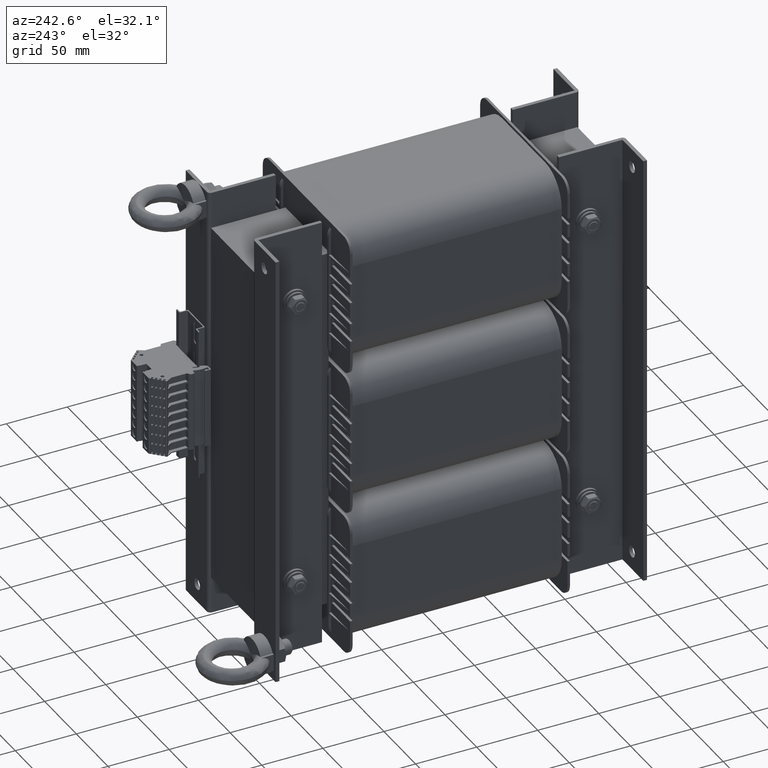
[diagram: clean part render]
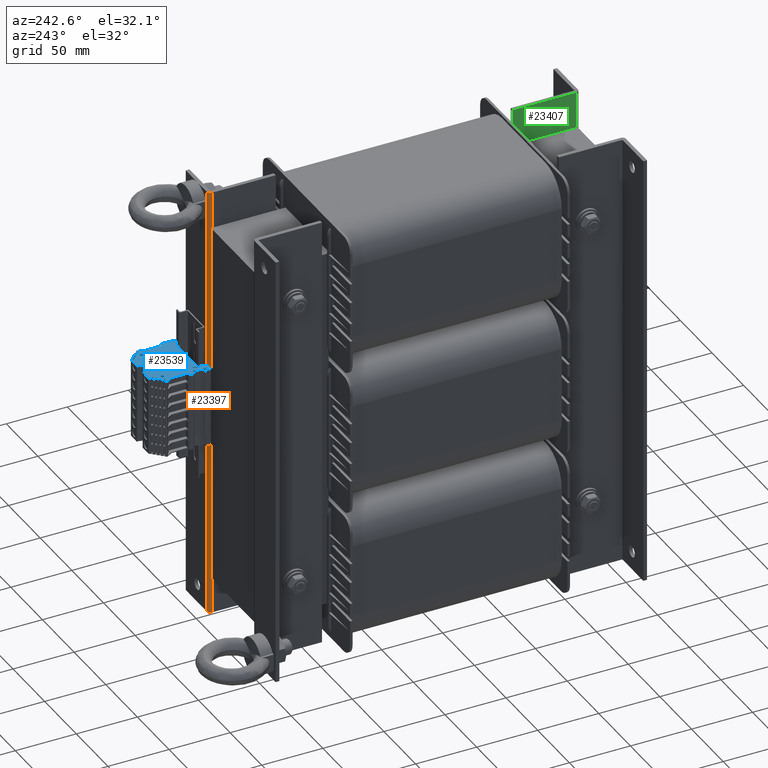
[diagram: same view with three faces highlighted in distinct colors, each labeled with its STEP entity id]
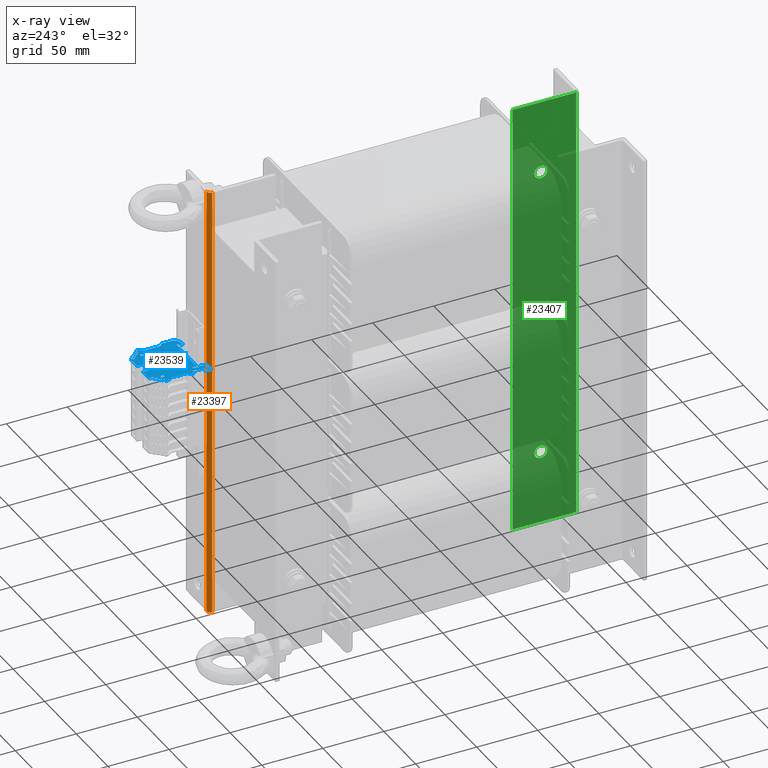
[diagram: x-ray of the same camera — body ghosted, the three highlighted faces saturated]
A machine part, auxiliary view with three faces highlighted in distinct colors.
The next image is the same camera in x-ray (body ghosted, the three faces saturated) — at least one of them is partly hidden behind the body in this view.
Their STEP definitions:

[orange] entity #23397 — the highlighted cylindrical surface (edge-blend (fillet) strip) has radius 3.001 mm, axis along (0, -0, -1).
#1202=CIRCLE('',#25089,3.00100000000921);
#1203=CIRCLE('',#25090,3.00099999999077);
#1774=CYLINDRICAL_SURFACE('',#25088,3.001);
#2321=FACE_OUTER_BOUND('',#3576,.T.);
#3576=EDGE_LOOP('',(#17014,#17015,#17016,#17017));
#5238=LINE('',#34900,#7874);
#5239=LINE('',#34904,#7875);
#7874=VECTOR('',#28174,10.);
#7875=VECTOR('',#28177,10.);
#10332=VERTEX_POINT('',#34898);
#10333=VERTEX_POINT('',#34899);
#10334=VERTEX_POINT('',#34901);
#10335=VERTEX_POINT('',#34903);
#12838=EDGE_CURVE('',#10332,#10333,#5238,.T.);
#12839=EDGE_CURVE('',#10334,#10332,#1202,.T.);
#12840=EDGE_CURVE('',#10335,#10334,#5239,.T.);
#12841=EDGE_CURVE('',#10333,#10335,#1203,.T.);
#17014=ORIENTED_EDGE('',*,*,#12838,.F.);
#17015=ORIENTED_EDGE('',*,*,#12839,.F.);
#17016=ORIENTED_EDGE('',*,*,#12840,.F.);
#17017=ORIENTED_EDGE('',*,*,#12841,.F.);
#23397=ADVANCED_FACE('',(#2321),#1774,.T.);
#25088=AXIS2_PLACEMENT_3D('',#34897,#28172,#28173);
#25089=AXIS2_PLACEMENT_3D('',#34902,#28175,#28176);
#25090=AXIS2_PLACEMENT_3D('',#34905,#28178,#28179);
#28172=DIRECTION('center_axis',(-3.20731096002823E-16,0.,-1.));
#28173=DIRECTION('ref_axis',(0.,-1.,0.));
#28174=DIRECTION('',(3.68689198618071E-14,-6.26651381584941E-29,1.));
#28175=DIRECTION('center_axis',(-3.20731096002823E-16,0.,-1.));
#28176=DIRECTION('ref_axis',(-4.43941229438886E-12,-1.,0.));
#28177=DIRECTION('',(-2.96059473233375E-16,0.,-1.));
#28178=DIRECTION('center_axis',(3.20731096002823E-16,0.,1.));
#28179=DIRECTION('ref_axis',(-1.,1.66477961040606E-15,0.));
#34897=CARTESIAN_POINT('Origin',(-51.9989999999941,3.00100000000001,180.));
#34898=CARTESIAN_POINT('',(-55.0000000000033,3.00100000000001,-3.30587232976065E-14));
#34899=CARTESIAN_POINT('',(-54.9999999999848,3.001,360.));
#34900=CARTESIAN_POINT('',(-54.9999999999941,3.001,179.999999999999));
#34901=CARTESIAN_POINT('',(-51.999,-5.55111512312578E-16,0.));
#34902=CARTESIAN_POINT('Origin',(-51.9989999999941,3.00100000000001,-3.5527136788005E-14));
#34903=CARTESIAN_POINT('',(-51.9989999999999,-5.55111512312578E-16,360.));
#34904=CARTESIAN_POINT('',(-51.9989999999999,0.,270.));
#34905=CARTESIAN_POINT('Origin',(-51.998999999994,3.00100000000001,360.));

[blue] entity #23539 — the highlighted planar face has unit normal (0, -0, 1).
#1070=FACE_BOUND('',#3748,.T.);
#1071=FACE_BOUND('',#3749,.T.);
#1302=CIRCLE('',#25353,0.8);
#1303=CIRCLE('',#25354,1.);
#1304=CIRCLE('',#25355,1.);
#1305=CIRCLE('',#25356,0.8);
#1306=CIRCLE('',#25357,0.3);
#1307=CIRCLE('',#25358,1.);
#1308=CIRCLE('',#25359,1.);
#1309=CIRCLE('',#25360,1.);
#1310=CIRCLE('',#25361,2.);
#1311=CIRCLE('',#25362,2.);
#1312=CIRCLE('',#25363,0.6);
#1313=CIRCLE('',#25364,0.3);
#1314=CIRCLE('',#25365,0.3);
#1315=CIRCLE('',#25366,0.5);
#1316=CIRCLE('',#25367,0.4);
#1317=CIRCLE('',#25368,0.4);
#1318=CIRCLE('',#25369,0.4);
#1319=CIRCLE('',#25370,0.4);
#1320=CIRCLE('',#25371,0.4);
#1321=CIRCLE('',#25372,0.4);
#1322=CIRCLE('',#25373,0.4);
#1323=CIRCLE('',#25374,0.4);
#1324=CIRCLE('',#25375,0.5);
#1325=CIRCLE('',#25376,0.3);
#1326=CIRCLE('',#25377,0.3);
#1327=CIRCLE('',#25378,0.6);
#1328=CIRCLE('',#25379,1.);
#1329=CIRCLE('',#25380,0.5);
#1330=CIRCLE('',#25381,2.);
#1331=CIRCLE('',#25382,2.);
#1332=CIRCLE('',#25383,0.3);
#1333=CIRCLE('',#25384,0.3);
#1334=CIRCLE('',#25385,0.3);
#1335=CIRCLE('',#25386,0.3);
#1336=CIRCLE('',#25387,0.3);
#1337=CIRCLE('',#25388,0.3);
#1338=CIRCLE('',#25389,0.3);
#1339=CIRCLE('',#25390,0.3);
#1340=CIRCLE('',#25391,0.5);
#1341=CIRCLE('',#25392,2.5);
#1342=CIRCLE('',#25393,2.);
#1343=CIRCLE('',#25394,0.15);
#1344=CIRCLE('',#25395,0.25);
#1345=CIRCLE('',#25396,1.9);
#1346=CIRCLE('',#25397,0.55);
#1347=CIRCLE('',#25398,1.375);
#1348=CIRCLE('',#25399,1.375);
#2463=FACE_OUTER_BOUND('',#3747,.T.);
#3747=EDGE_LOOP('',(#17700,#17701,#17702,#17703,#17704,#17705,#17706,#17707,
#17708,#17709,#17710,#17711,#17712,#17713,#17714,#17715,#17716,#17717,#17718,
#17719,#17720,#17721,#17722,#17723,#17724,#17725,#17726,#17727,#17728,#17729,
#17730,#17731,#17732,#17733,#17734,#17735,#17736,#17737,#17738,#17739,#17740,
#17741,#17742,#17743,#17744,#17745,#17746,#17747,#17748,#17749,#17750,#17751,
#17752,#17753,#17754,#17755,#17756,#17757,#17758,#17759,#17760,#17761,#17762,
#17763,#17764,#17765,#17766,#17767,#17768,#17769,#17770,#17771,#17772,#17773,
#17774,#17775,#17776,#17777,#17778,#17779,#17780,#17781,#17782,#17783,#17784,
#17785,#17786,#17787,#17788,#17789,#17790,#17791,#17792,#17793,#17794,#17795,
#17796,#17797,#17798,#17799,#17800,#17801,#17802,#17803,#17804,#17805,#17806,
#17807,#17808,#17809,#17810,#17811,#17812,#17813,#17814,#17815,#17816,#17817,
#17818,#17819,#17820,#17821,#17822,#17823,#17824,#17825,#17826,#17827,#17828,
#17829,#17830,#17831,#17832,#17833,#17834,#17835,#17836,#17837,#17838,#17839,
#17840,#17841,#17842,#17843,#17844,#17845,#17846,#17847,#17848,#17849,#17850,
#17851,#17852,#17853,#17854,#17855,#17856,#17857,#17858,#17859,#17860,#17861,
#17862,#17863,#17864,#17865,#17866,#17867,#17868,#17869,#17870,#17871,#17872,
#17873,#17874));
#3748=EDGE_LOOP('',(#17875));
#3749=EDGE_LOOP('',(#17876));
#5411=LINE('',#36210,#8047);
#5412=LINE('',#36214,#8048);
#5413=LINE('',#36218,#8049);
#5414=LINE('',#36222,#8050);
#5415=LINE('',#36228,#8051);
#5416=LINE('',#36230,#8052);
#5417=LINE('',#36232,#8053);
#5418=LINE('',#36236,#8054);
#5419=LINE('',#36240,#8055);
#5420=LINE('',#36244,#8056);
#5421=LINE('',#36248,#8057);
#5422=LINE('',#36252,#8058);
#5423=LINE('',#36256,#8059);
#5424=LINE('',#36260,#8060);
#5425=LINE('',#36262,#8061);
#5426=LINE('',#36266,#8062);
#5427=LINE('',#36268,#8063);
#5428=LINE('',#36270,#8064);
#5429=LINE('',#36272,#8065);
#5430=LINE('',#36274,#8066);
#5431=LINE('',#36276,#8067);
#5432=LINE('',#36278,#8068);
#5433=LINE('',#36280,#8069);
#5434=LINE('',#36282,#8070);
#5435=LINE('',#36284,#8071);
#5436=LINE('',#36286,#8072);
#5437=LINE('',#36288,#8073);
#5438=LINE('',#36290,#8074);
#5439=LINE('',#36292,#8075);
#5440=LINE('',#36294,#8076);
#5441=LINE('',#36296,#8077);
#5442=LINE('',#36298,#8078);
#5443=LINE('',#36300,#8079);
#5444=LINE('',#36302,#8080);
#5445=LINE('',#36304,#8081);
#5446=LINE('',#36306,#8082);
#5447=LINE('',#36308,#8083);
#5448=LINE('',#36310,#8084);
#5449=LINE('',#36312,#8085);
#5450=LINE('',#36314,#8086);
#5451=LINE('',#36316,#8087);
#5452=LINE('',#36318,#8088);
#5453=LINE('',#36320,#8089);
#5454=LINE('',#36322,#8090);
#5455=LINE('',#36324,#8091);
#5456=LINE('',#36326,#8092);
#5457=LINE('',#36328,#8093);
#5458=LINE('',#36330,#8094);
#5459=LINE('',#36332,#8095);
#5460=LINE('',#36334,#8096);
#5461=LINE('',#36336,#8097);
#5462=LINE('',#36338,#8098);
#5463=LINE('',#36340,#8099);
#5464=LINE('',#36342,#8100);
#5465=LINE('',#36344,#8101);
#5466=LINE('',#36346,#8102);
#5467=LINE('',#36348,#8103);
#5468=LINE('',#36352,#8104);
#5469=LINE('',#36358,#8105);
#5470=LINE('',#36362,#8106);
#5471=LINE('',#36366,#8107);
#5472=LINE('',#36368,#8108);
#5473=LINE('',#36370,#8109);
#5474=LINE('',#36374,#8110);
#5475=LINE('',#36378,#8111);
#5476=LINE('',#36384,#8112);
#5477=LINE('',#36388,#8113);
#5478=LINE('',#36390,#8114);
#5479=LINE('',#36392,#8115);
#5480=LINE('',#36394,#8116);
#5481=LINE('',#36396,#8117);
#5482=LINE('',#36398,#8118);
#5483=LINE('',#36400,#8119);
#5484=LINE('',#36402,#8120);
#5485=LINE('',#36404,#8121);
#5486=LINE('',#36406,#8122);
#5487=LINE('',#36408,#8123);
#5488=LINE('',#36410,#8124);
#5489=LINE('',#36412,#8125);
#5490=LINE('',#36414,#8126);
#5491=LINE('',#36416,#8127);
#5492=LINE('',#36418,#8128);
#5493=LINE('',#36420,#8129);
#5494=LINE('',#36422,#8130);
#5495=LINE('',#36424,#8131);
#5496=LINE('',#36426,#8132);
#5497=LINE('',#36428,#8133);
#5498=LINE('',#36430,#8134);
#5499=LINE('',#36432,#8135);
#5500=LINE('',#36434,#8136);
#5501=LINE('',#36436,#8137);
#5502=LINE('',#36438,#8138);
#5503=LINE('',#36440,#8139);
#5504=LINE('',#36442,#8140);
#5505=LINE('',#36444,#8141);
#5506=LINE('',#36446,#8142);
#5507=LINE('',#36448,#8143);
#5508=LINE('',#36450,#8144);
#5509=LINE('',#36452,#8145);
#5510=LINE('',#36454,#8146);
#5511=LINE('',#36456,#8147);
#5512=LINE('',#36458,#8148);
#5513=LINE('',#36460,#8149);
#5514=LINE('',#36462,#8150);
#5515=LINE('',#36464,#8151);
#5516=LINE('',#36466,#8152);
#5517=LINE('',#36468,#8153);
#5518=LINE('',#36470,#8154);
#5519=LINE('',#36474,#8155);
#5520=LINE('',#36476,#8156);
#5521=LINE('',#36480,#8157);
#5522=LINE('',#36484,#8158);
#5523=LINE('',#36488,#8159);
#5524=LINE('',#36492,#8160);
#5525=LINE('',#36496,#8161);
#5526=LINE('',#36500,#8162);
#5527=LINE('',#36504,#8163);
#5528=LINE('',#36508,#8164);
#5529=LINE('',#36512,#8165);
#5530=LINE('',#36516,#8166);
#5531=LINE('',#36520,#8167);
#5532=LINE('',#36524,#8168);
#5533=LINE('',#36528,#8169);
#5534=LINE('',#36532,#8170);
#5535=LINE('',#36536,#8171);
#5536=LINE('',#36540,#8172);
#5537=LINE('',#36544,#8173);
#5538=LINE('',#36548,#8174);
#5539=LINE('',#36552,#8175);
#5540=LINE('',#36556,#8176);
#8047=VECTOR('',#28875,0.99999999999987);
#8048=VECTOR('',#28878,1.00000000000025);
#8049=VECTOR('',#28881,1.);
#8050=VECTOR('',#28884,1.00000000000025);
#8051=VECTOR('',#28889,0.999999999999799);
#8052=VECTOR('',#28890,1.);
#8053=VECTOR('',#28891,0.999999999999799);
#8054=VECTOR('',#28894,1.00000000000064);
#8055=VECTOR('',#28897,1.);
#8056=VECTOR('',#28900,1.);
#8057=VECTOR('',#28903,0.99999999999998);
#8058=VECTOR('',#28906,1.);
#8059=VECTOR('',#28909,0.99999999999962);
#8060=VECTOR('',#28912,1.);
#8061=VECTOR('',#28913,0.99999999999962);
#8062=VECTOR('',#28916,1.00000000000064);
#8063=VECTOR('',#28917,1.0000000000002);
#8064=VECTOR('',#28918,0.999999999999933);
#8065=VECTOR('',#28919,1.);
#8066=VECTOR('',#28920,0.999999999999933);
#8067=VECTOR('',#28921,1.00000000000064);
#8068=VECTOR('',#28922,0.999999999999933);
#8069=VECTOR('',#28923,1.);
#8070=VECTOR('',#28924,0.999999999999933);
#8071=VECTOR('',#28925,1.0000000000002);
#8072=VECTOR('',#28926,1.00000000000064);
#8073=VECTOR('',#28927,1.0000000000002);
#8074=VECTOR('',#28928,1.00000000000064);
#8075=VECTOR('',#28929,1.);
#8076=VECTOR('',#28930,1.00000000000064);
#8077=VECTOR('',#28931,0.999999999999933);
#8078=VECTOR('',#28932,0.999999999999933);
#8079=VECTOR('',#28933,1.);
#8080=VECTOR('',#28934,0.999999999999933);
#8081=VECTOR('',#28935,1.0000000000002);
#8082=VECTOR('',#28936,1.00000000000064);
#8083=VECTOR('',#28937,1.0000000000002);
#8084=VECTOR('',#28938,1.00000000000064);
#8085=VECTOR('',#28939,1.);
#8086=VECTOR('',#28940,0.999999999999933);
#8087=VECTOR('',#28941,1.00000000000064);
#8088=VECTOR('',#28942,0.999999999999933);
#8089=VECTOR('',#28943,1.);
#8090=VECTOR('',#28944,1.00000000000064);
#8091=VECTOR('',#28945,1.0000000000002);
#8092=VECTOR('',#28946,0.999999999999933);
#8093=VECTOR('',#28947,1.0000000000002);
#8094=VECTOR('',#28948,1.00000000000064);
#8095=VECTOR('',#28949,1.);
#8096=VECTOR('',#28950,0.999999999999933);
#8097=VECTOR('',#28951,1.00000000000064);
#8098=VECTOR('',#28952,0.999999999999933);
#8099=VECTOR('',#28953,1.);
#8100=VECTOR('',#28954,0.999999999999933);
#8101=VECTOR('',#28955,1.0000000000002);
#8102=VECTOR('',#28956,1.00000000000064);
#8103=VECTOR('',#28957,1.);
#8104=VECTOR('',#28960,1.);
#8105=VECTOR('',#28965,1.);
#8106=VECTOR('',#28968,1.00000000000044);
#8107=VECTOR('',#28971,1.);
#8108=VECTOR('',#28972,1.);
#8109=VECTOR('',#28973,1.);
#8110=VECTOR('',#28976,1.00000000000044);
#8111=VECTOR('',#28979,1.);
#8112=VECTOR('',#28984,1.);
#8113=VECTOR('',#28987,1.);
#8114=VECTOR('',#28988,1.00000000000064);
#8115=VECTOR('',#28989,1.0000000000002);
#8116=VECTOR('',#28990,0.999999999999933);
#8117=VECTOR('',#28991,1.);
#8118=VECTOR('',#28992,0.999999999999933);
#8119=VECTOR('',#28993,1.00000000000064);
#8120=VECTOR('',#28994,0.999999999999933);
#8121=VECTOR('',#28995,1.);
#8122=VECTOR('',#28996,1.00000000000064);
#8123=VECTOR('',#28997,1.0000000000002);
#8124=VECTOR('',#28998,0.999999999999933);
#8125=VECTOR('',#28999,1.0000000000002);
#8126=VECTOR('',#29000,1.00000000000064);
#8127=VECTOR('',#29001,1.);
#8128=VECTOR('',#29002,0.999999999999933);
#8129=VECTOR('',#29003,1.00000000000064);
#8130=VECTOR('',#29004,0.999999999999933);
#8131=VECTOR('',#29005,1.);
#8132=VECTOR('',#29006,1.00000000000064);
#8133=VECTOR('',#29007,1.0000000000002);
#8134=VECTOR('',#29008,0.999999999999933);
#8135=VECTOR('',#29009,1.0000000000002);
#8136=VECTOR('',#29010,0.999999999999933);
#8137=VECTOR('',#29011,1.);
#8138=VECTOR('',#29012,0.999999999999933);
#8139=VECTOR('',#29013,0.999999999999933);
#8140=VECTOR('',#29014,1.00000000000064);
#8141=VECTOR('',#29015,1.);
#8142=VECTOR('',#29016,1.00000000000064);
#8143=VECTOR('',#29017,1.0000000000002);
#8144=VECTOR('',#29018,1.00000000000064);
#8145=VECTOR('',#29019,1.0000000000002);
#8146=VECTOR('',#29020,0.999999999999933);
#8147=VECTOR('',#29021,1.);
#8148=VECTOR('',#29022,0.999999999999933);
#8149=VECTOR('',#29023,1.00000000000064);
#8150=VECTOR('',#29024,0.999999999999933);
#8151=VECTOR('',#29025,1.);
#8152=VECTOR('',#29026,0.999999999999933);
#8153=VECTOR('',#29027,1.0000000000002);
#8154=VECTOR('',#29028,1.00000000000064);
#8155=VECTOR('',#29031,0.99999999999962);
#8156=VECTOR('',#29032,1.);
#8157=VECTOR('',#29035,0.99999999999962);
#8158=VECTOR('',#29038,1.);
#8159=VECTOR('',#29041,1.);
#8160=VECTOR('',#29044,1.);
#8161=VECTOR('',#29047,0.999999999999801);
#8162=VECTOR('',#29050,1.);
#8163=VECTOR('',#29053,0.99999999999962);
#8164=VECTOR('',#29056,1.);
#8165=VECTOR('',#29059,1.);
#8166=VECTOR('',#29062,1.);
#8167=VECTOR('',#29065,0.999999999999933);
#8168=VECTOR('',#29068,0.999999999999986);
#8169=VECTOR('',#29071,1.);
#8170=VECTOR('',#29074,1.);
#8171=VECTOR('',#29077,1.);
#8172=VECTOR('',#29080,1.0000000000002);
#8173=VECTOR('',#29083,1.);
#8174=VECTOR('',#29086,1.00000000000025);
#8175=VECTOR('',#29089,1.);
#8176=VECTOR('',#29092,0.99999999999987);
#10548=VERTEX_POINT('',#36208);
#10549=VERTEX_POINT('',#36209);
#10550=VERTEX_POINT('',#36211);
#10551=VERTEX_POINT('',#36213);
#10552=VERTEX_POINT('',#36215);
#10553=VERTEX_POINT('',#36217);
#10554=VERTEX_POINT('',#36219);
#10555=VERTEX_POINT('',#36221);
#10556=VERTEX_POINT('',#36223);
#10557=VERTEX_POINT('',#36225);
#10558=VERTEX_POINT('',#36227);
#10559=VERTEX_POINT('',#36229);
#10560=VERTEX_POINT('',#36231);
#10561=VERTEX_POINT('',#36233);
#10562=VERTEX_POINT('',#36235);
#10563=VERTEX_POINT('',#36237);
#10564=VERTEX_POINT('',#36239);
#10565=VERTEX_POINT('',#36241);
#10566=VERTEX_POINT('',#36243);
#10567=VERTEX_POINT('',#36245);
#10568=VERTEX_POINT('',#36247);
#10569=VERTEX_POINT('',#36249);
#10570=VERTEX_POINT('',#36251);
#10571=VERTEX_POINT('',#36253);
#10572=VERTEX_POINT('',#36255);
#10573=VERTEX_POINT('',#36257);
#10574=VERTEX_POINT('',#36259);
#10575=VERTEX_POINT('',#36261);
#10576=VERTEX_POINT('',#36263);
#10577=VERTEX_POINT('',#36265);
#10578=VERTEX_POINT('',#36267);
#10579=VERTEX_POINT('',#36269);
#10580=VERTEX_POINT('',#36271);
#10581=VERTEX_POINT('',#36273);
#10582=VERTEX_POINT('',#36275);
#10583=VERTEX_POINT('',#36277);
#10584=VERTEX_POINT('',#36279);
#10585=VERTEX_POINT('',#36281);
#10586=VERTEX_POINT('',#36283);
#10587=VERTEX_POINT('',#36285);
#10588=VERTEX_POINT('',#36287);
#10589=VERTEX_POINT('',#36289);
#10590=VERTEX_POINT('',#36291);
#10591=VERTEX_POINT('',#36293);
#10592=VERTEX_POINT('',#36295);
#10593=VERTEX_POINT('',#36297);
#10594=VERTEX_POINT('',#36299);
#10595=VERTEX_POINT('',#36301);
#10596=VERTEX_POINT('',#36303);
#10597=VERTEX_POINT('',#36305);
#10598=VERTEX_POINT('',#36307);
#10599=VERTEX_POINT('',#36309);
#10600=VERTEX_POINT('',#36311);
#10601=VERTEX_POINT('',#36313);
#10602=VERTEX_POINT('',#36315);
#10603=VERTEX_POINT('',#36317);
#10604=VERTEX_POINT('',#36319);
#10605=VERTEX_POINT('',#36321);
#10606=VERTEX_POINT('',#36323);
#10607=VERTEX_POINT('',#36325);
#10608=VERTEX_POINT('',#36327);
#10609=VERTEX_POINT('',#36329);
#10610=VERTEX_POINT('',#36331);
#10611=VERTEX_POINT('',#36333);
#10612=VERTEX_POINT('',#36335);
#10613=VERTEX_POINT('',#36337);
#10614=VERTEX_POINT('',#36339);
#10615=VERTEX_POINT('',#36341);
#10616=VERTEX_POINT('',#36343);
#10617=VERTEX_POINT('',#36345);
#10618=VERTEX_POINT('',#36347);
#10619=VERTEX_POINT('',#36349);
#10620=VERTEX_POINT('',#36351);
#10621=VERTEX_POINT('',#36353);
#10622=VERTEX_POINT('',#36355);
#10623=VERTEX_POINT('',#36357);
#10624=VERTEX_POINT('',#36359);
#10625=VERTEX_POINT('',#36361);
#10626=VERTEX_POINT('',#36363);
#10627=VERTEX_POINT('',#36365);
#10628=VERTEX_POINT('',#36367);
#10629=VERTEX_POINT('',#36369);
#10630=VERTEX_POINT('',#36371);
#10631=VERTEX_POINT('',#36373);
#10632=VERTEX_POINT('',#36375);
#10633=VERTEX_POINT('',#36377);
#10634=VERTEX_POINT('',#36379);
#10635=VERTEX_POINT('',#36381);
#10636=VERTEX_POINT('',#36383);
#10637=VERTEX_POINT('',#36385);
#10638=VERTEX_POINT('',#36387);
#10639=VERTEX_POINT('',#36389);
#10640=VERTEX_POINT('',#36391);
#10641=VERTEX_POINT('',#36393);
#10642=VERTEX_POINT('',#36395);
#10643=VERTEX_POINT('',#36397);
#10644=VERTEX_POINT('',#36399);
#10645=VERTEX_POINT('',#36401);
#10646=VERTEX_POINT('',#36403);
#10647=VERTEX_POINT('',#36405);
#10648=VERTEX_POINT('',#36407);
#10649=VERTEX_POINT('',#36409);
#10650=VERTEX_POINT('',#36411);
#10651=VERTEX_POINT('',#36413);
#10652=VERTEX_POINT('',#36415);
#10653=VERTEX_POINT('',#36417);
#10654=VERTEX_POINT('',#36419);
#10655=VERTEX_POINT('',#36421);
#10656=VERTEX_POINT('',#36423);
#10657=VERTEX_POINT('',#36425);
#10658=VERTEX_POINT('',#36427);
#10659=VERTEX_POINT('',#36429);
#10660=VERTEX_POINT('',#36431);
#10661=VERTEX_POINT('',#36433);
#10662=VERTEX_POINT('',#36435);
#10663=VERTEX_POINT('',#36437);
#10664=VERTEX_POINT('',#36439);
#10665=VERTEX_POINT('',#36441);
#10666=VERTEX_POINT('',#36443);
#10667=VERTEX_POINT('',#36445);
#10668=VERTEX_POINT('',#36447);
#10669=VERTEX_POINT('',#36449);
#10670=VERTEX_POINT('',#36451);
#10671=VERTEX_POINT('',#36453);
#10672=VERTEX_POINT('',#36455);
#10673=VERTEX_POINT('',#36457);
#10674=VERTEX_POINT('',#36459);
#10675=VERTEX_POINT('',#36461);
#10676=VERTEX_POINT('',#36463);
#10677=VERTEX_POINT('',#36465);
#10678=VERTEX_POINT('',#36467);
#10679=VERTEX_POINT('',#36469);
#10680=VERTEX_POINT('',#36471);
#10681=VERTEX_POINT('',#36473);
#10682=VERTEX_POINT('',#36475);
#10683=VERTEX_POINT('',#36477);
#10684=VERTEX_POINT('',#36479);
#10685=VERTEX_POINT('',#36481);
#10686=VERTEX_POINT('',#36483);
#10687=VERTEX_POINT('',#36485);
#10688=VERTEX_POINT('',#36487);
#10689=VERTEX_POINT('',#36489);
#10690=VERTEX_POINT('',#36491);
#10691=VERTEX_POINT('',#36493);
#10692=VERTEX_POINT('',#36495);
#10693=VERTEX_POINT('',#36497);
#10694=VERTEX_POINT('',#36499);
#10695=VERTEX_POINT('',#36501);
#10696=VERTEX_POINT('',#36503);
#10697=VERTEX_POINT('',#36505);
#10698=VERTEX_POINT('',#36507);
#10699=VERTEX_POINT('',#36509);
#10700=VERTEX_POINT('',#36511);
#10701=VERTEX_POINT('',#36513);
#10702=VERTEX_POINT('',#36515);
#10703=VERTEX_POINT('',#36517);
#10704=VERTEX_POINT('',#36519);
#10705=VERTEX_POINT('',#36521);
#10706=VERTEX_POINT('',#36523);
#10707=VERTEX_POINT('',#36525);
#10708=VERTEX_POINT('',#36527);
#10709=VERTEX_POINT('',#36529);
#10710=VERTEX_POINT('',#36531);
#10711=VERTEX_POINT('',#36533);
#10712=VERTEX_POINT('',#36535);
#10713=VERTEX_POINT('',#36537);
#10714=VERTEX_POINT('',#36539);
#10715=VERTEX_POINT('',#36541);
#10716=VERTEX_POINT('',#36543);
#10717=VERTEX_POINT('',#36545);
#10718=VERTEX_POINT('',#36547);
#10719=VERTEX_POINT('',#36549);
#10720=VERTEX_POINT('',#36551);
#10721=VERTEX_POINT('',#36553);
#10722=VERTEX_POINT('',#36555);
#10723=VERTEX_POINT('',#36558);
#10724=VERTEX_POINT('',#36560);
#13179=EDGE_CURVE('',#10548,#10549,#5411,.T.);
#13180=EDGE_CURVE('',#10549,#10550,#1302,.T.);
#13181=EDGE_CURVE('',#10551,#10550,#5412,.T.);
#13182=EDGE_CURVE('',#10552,#10551,#1303,.T.);
#13183=EDGE_CURVE('',#10552,#10553,#5413,.T.);
#13184=EDGE_CURVE('',#10554,#10553,#1304,.T.);
#13185=EDGE_CURVE('',#10555,#10554,#5414,.T.);
#13186=EDGE_CURVE('',#10555,#10556,#1305,.T.);
#13187=EDGE_CURVE('',#10557,#10556,#1306,.T.);
#13188=EDGE_CURVE('',#10558,#10557,#5415,.T.);
#13189=EDGE_CURVE('',#10559,#10558,#5416,.T.);
#13190=EDGE_CURVE('',#10560,#10559,#5417,.T.);
#13191=EDGE_CURVE('',#10560,#10561,#1307,.T.);
#13192=EDGE_CURVE('',#10562,#10561,#5418,.T.);
#13193=EDGE_CURVE('',#10562,#10563,#1308,.T.);
#13194=EDGE_CURVE('',#10564,#10563,#5419,.T.);
#13195=EDGE_CURVE('',#10564,#10565,#1309,.T.);
#13196=EDGE_CURVE('',#10566,#10565,#5420,.T.);
#13197=EDGE_CURVE('',#10566,#10567,#1310,.T.);
#13198=EDGE_CURVE('',#10568,#10567,#5421,.T.);
#13199=EDGE_CURVE('',#10568,#10569,#1311,.T.);
#13200=EDGE_CURVE('',#10569,#10570,#5422,.T.);
#13201=EDGE_CURVE('',#10570,#10571,#1312,.T.);
#13202=EDGE_CURVE('',#10572,#10571,#5423,.T.);
#13203=EDGE_CURVE('',#10572,#10573,#1313,.T.);
#13204=EDGE_CURVE('',#10574,#10573,#5424,.T.);
#13205=EDGE_CURVE('',#10575,#10574,#5425,.T.);
#13206=EDGE_CURVE('',#10575,#10576,#1314,.T.);
#13207=EDGE_CURVE('',#10576,#10577,#5426,.T.);
#13208=EDGE_CURVE('',#10577,#10578,#5427,.T.);
#13209=EDGE_CURVE('',#10578,#10579,#5428,.T.);
#13210=EDGE_CURVE('',#10579,#10580,#5429,.T.);
#13211=EDGE_CURVE('',#10580,#10581,#5430,.T.);
#13212=EDGE_CURVE('',#10581,#10582,#5431,.T.);
#13213=EDGE_CURVE('',#10582,#10583,#5432,.T.);
#13214=EDGE_CURVE('',#10583,#10584,#5433,.T.);
#13215=EDGE_CURVE('',#10584,#10585,#5434,.T.);
#13216=EDGE_CURVE('',#10585,#10586,#5435,.T.);
#13217=EDGE_CURVE('',#10586,#10587,#5436,.T.);
#13218=EDGE_CURVE('',#10587,#10588,#5437,.T.);
#13219=EDGE_CURVE('',#10588,#10589,#5438,.T.);
#13220=EDGE_CURVE('',#10589,#10590,#5439,.T.);
#13221=EDGE_CURVE('',#10590,#10591,#5440,.T.);
#13222=EDGE_CURVE('',#10591,#10592,#5441,.T.);
#13223=EDGE_CURVE('',#10592,#10593,#5442,.T.);
#13224=EDGE_CURVE('',#10593,#10594,#5443,.T.);
#13225=EDGE_CURVE('',#10594,#10595,#5444,.T.);
#13226=EDGE_CURVE('',#10595,#10596,#5445,.T.);
#13227=EDGE_CURVE('',#10596,#10597,#5446,.T.);
#13228=EDGE_CURVE('',#10597,#10598,#5447,.T.);
#13229=EDGE_CURVE('',#10598,#10599,#5448,.T.);
#13230=EDGE_CURVE('',#10599,#10600,#5449,.T.);
#13231=EDGE_CURVE('',#10600,#10601,#5450,.T.);
#13232=EDGE_CURVE('',#10601,#10602,#5451,.T.);
#13233=EDGE_CURVE('',#10602,#10603,#5452,.T.);
#13234=EDGE_CURVE('',#10603,#10604,#5453,.T.);
#13235=EDGE_CURVE('',#10604,#10605,#5454,.T.);
#13236=EDGE_CURVE('',#10605,#10606,#5455,.T.);
#13237=EDGE_CURVE('',#10606,#10607,#5456,.T.);
#13238=EDGE_CURVE('',#10607,#10608,#5457,.T.);
#13239=EDGE_CURVE('',#10608,#10609,#5458,.T.);
#13240=EDGE_CURVE('',#10609,#10610,#5459,.T.);
#13241=EDGE_CURVE('',#10610,#10611,#5460,.T.);
#13242=EDGE_CURVE('',#10611,#10612,#5461,.T.);
#13243=EDGE_CURVE('',#10612,#10613,#5462,.T.);
#13244=EDGE_CURVE('',#10613,#10614,#5463,.T.);
#13245=EDGE_CURVE('',#10614,#10615,#5464,.T.);
#13246=EDGE_CURVE('',#10615,#10616,#5465,.T.);
#13247=EDGE_CURVE('',#10616,#10617,#5466,.T.);
#13248=EDGE_CURVE('',#10617,#10618,#5467,.T.);
#13249=EDGE_CURVE('',#10618,#10619,#1315,.T.);
#13250=EDGE_CURVE('',#10620,#10619,#5468,.T.);
#13251=EDGE_CURVE('',#10620,#10621,#1316,.T.);
#13252=EDGE_CURVE('',#10622,#10621,#1317,.T.);
#13253=EDGE_CURVE('',#10623,#10622,#5469,.T.);
#13254=EDGE_CURVE('',#10624,#10623,#1318,.T.);
#13255=EDGE_CURVE('',#10625,#10624,#5470,.T.);
#13256=EDGE_CURVE('',#10625,#10626,#1319,.T.);
#13257=EDGE_CURVE('',#10627,#10626,#5471,.T.);
#13258=EDGE_CURVE('',#10628,#10627,#5472,.T.);
#13259=EDGE_CURVE('',#10629,#10628,#5473,.T.);
#13260=EDGE_CURVE('',#10629,#10630,#1320,.T.);
#13261=EDGE_CURVE('',#10631,#10630,#5474,.T.);
#13262=EDGE_CURVE('',#10632,#10631,#1321,.T.);
#13263=EDGE_CURVE('',#10633,#10632,#5475,.T.);
#13264=EDGE_CURVE('',#10634,#10633,#1322,.T.);
#13265=EDGE_CURVE('',#10634,#10635,#1323,.T.);
#13266=EDGE_CURVE('',#10636,#10635,#5476,.T.);
#13267=EDGE_CURVE('',#10636,#10637,#1324,.T.);
#13268=EDGE_CURVE('',#10637,#10638,#5477,.T.);
#13269=EDGE_CURVE('',#10638,#10639,#5478,.T.);
#13270=EDGE_CURVE('',#10640,#10639,#5479,.T.);
#13271=EDGE_CURVE('',#10641,#10640,#5480,.T.);
#13272=EDGE_CURVE('',#10642,#10641,#5481,.T.);
#13273=EDGE_CURVE('',#10643,#10642,#5482,.T.);
#13274=EDGE_CURVE('',#10644,#10643,#5483,.T.);
#13275=EDGE_CURVE('',#10645,#10644,#5484,.T.);
#13276=EDGE_CURVE('',#10646,#10645,#5485,.T.);
#13277=EDGE_CURVE('',#10647,#10646,#5486,.T.);
#13278=EDGE_CURVE('',#10648,#10647,#5487,.T.);
#13279=EDGE_CURVE('',#10648,#10649,#5488,.T.);
#13280=EDGE_CURVE('',#10650,#10649,#5489,.T.);
#13281=EDGE_CURVE('',#10651,#10650,#5490,.T.);
#13282=EDGE_CURVE('',#10652,#10651,#5491,.T.);
#13283=EDGE_CURVE('',#10653,#10652,#5492,.T.);
#13284=EDGE_CURVE('',#10654,#10653,#5493,.T.);
#13285=EDGE_CURVE('',#10655,#10654,#5494,.T.);
#13286=EDGE_CURVE('',#10656,#10655,#5495,.T.);
#13287=EDGE_CURVE('',#10657,#10656,#5496,.T.);
#13288=EDGE_CURVE('',#10658,#10657,#5497,.T.);
#13289=EDGE_CURVE('',#10658,#10659,#5498,.T.);
#13290=EDGE_CURVE('',#10660,#10659,#5499,.T.);
#13291=EDGE_CURVE('',#10661,#10660,#5500,.T.);
#13292=EDGE_CURVE('',#10662,#10661,#5501,.T.);
#13293=EDGE_CURVE('',#10663,#10662,#5502,.T.);
#13294=EDGE_CURVE('',#10664,#10663,#5503,.T.);
#13295=EDGE_CURVE('',#10665,#10664,#5504,.T.);
#13296=EDGE_CURVE('',#10666,#10665,#5505,.T.);
#13297=EDGE_CURVE('',#10667,#10666,#5506,.T.);
#13298=EDGE_CURVE('',#10668,#10667,#5507,.T.);
#13299=EDGE_CURVE('',#10668,#10669,#5508,.T.);
#13300=EDGE_CURVE('',#10670,#10669,#5509,.T.);
#13301=EDGE_CURVE('',#10671,#10670,#5510,.T.);
#13302=EDGE_CURVE('',#10672,#10671,#5511,.T.);
#13303=EDGE_CURVE('',#10673,#10672,#5512,.T.);
#13304=EDGE_CURVE('',#10674,#10673,#5513,.T.);
#13305=EDGE_CURVE('',#10675,#10674,#5514,.T.);
#13306=EDGE_CURVE('',#10676,#10675,#5515,.T.);
#13307=EDGE_CURVE('',#10677,#10676,#5516,.T.);
#13308=EDGE_CURVE('',#10678,#10677,#5517,.T.);
#13309=EDGE_CURVE('',#10678,#10679,#5518,.T.);
#13310=EDGE_CURVE('',#10679,#10680,#1325,.T.);
#13311=EDGE_CURVE('',#10681,#10680,#5519,.T.);
#13312=EDGE_CURVE('',#10682,#10681,#5520,.T.);
#13313=EDGE_CURVE('',#10682,#10683,#1326,.T.);
#13314=EDGE_CURVE('',#10684,#10683,#5521,.T.);
#13315=EDGE_CURVE('',#10684,#10685,#1327,.T.);
#13316=EDGE_CURVE('',#10686,#10685,#5522,.T.);
#13317=EDGE_CURVE('',#10686,#10687,#1328,.T.);
#13318=EDGE_CURVE('',#10687,#10688,#5523,.T.);
#13319=EDGE_CURVE('',#10688,#10689,#1329,.T.);
#13320=EDGE_CURVE('',#10689,#10690,#5524,.T.);
#13321=EDGE_CURVE('',#10690,#10691,#1330,.T.);
#13322=EDGE_CURVE('',#10692,#10691,#5525,.T.);
#13323=EDGE_CURVE('',#10692,#10693,#1331,.T.);
#13324=EDGE_CURVE('',#10693,#10694,#5526,.T.);
#13325=EDGE_CURVE('',#10694,#10695,#1332,.T.);
#13326=EDGE_CURVE('',#10696,#10695,#5527,.T.);
#13327=EDGE_CURVE('',#10697,#10696,#1333,.T.);
#13328=EDGE_CURVE('',#10698,#10697,#5528,.T.);
#13329=EDGE_CURVE('',#10699,#10698,#1334,.T.);
#13330=EDGE_CURVE('',#10700,#10699,#5529,.T.);
#13331=EDGE_CURVE('',#10701,#10700,#1335,.T.);
#13332=EDGE_CURVE('',#10702,#10701,#5530,.T.);
#13333=EDGE_CURVE('',#10703,#10702,#1336,.T.);
#13334=EDGE_CURVE('',#10704,#10703,#5531,.T.);
#13335=EDGE_CURVE('',#10704,#10705,#1337,.T.);
#13336=EDGE_CURVE('',#10705,#10706,#5532,.T.);
#13337=EDGE_CURVE('',#10706,#10707,#1338,.T.);
#13338=EDGE_CURVE('',#10708,#10707,#5533,.T.);
#13339=EDGE_CURVE('',#10708,#10709,#1339,.T.);
#13340=EDGE_CURVE('',#10709,#10710,#5534,.T.);
#13341=EDGE_CURVE('',#10710,#10711,#1340,.T.);
#13342=EDGE_CURVE('',#10711,#10712,#5535,.T.);
#13343=EDGE_CURVE('',#10712,#10713,#1341,.T.);
#13344=EDGE_CURVE('',#10714,#10713,#5536,.T.);
#13345=EDGE_CURVE('',#10714,#10715,#1342,.T.);
#13346=EDGE_CURVE('',#10715,#10716,#5537,.T.);
#13347=EDGE_CURVE('',#10716,#10717,#1343,.T.);
#13348=EDGE_CURVE('',#10718,#10717,#5538,.T.);
#13349=EDGE_CURVE('',#10719,#10718,#1344,.T.);
#13350=EDGE_CURVE('',#10720,#10719,#5539,.T.);
#13351=EDGE_CURVE('',#10721,#10720,#1345,.T.);
#13352=EDGE_CURVE('',#10722,#10721,#5540,.T.);
#13353=EDGE_CURVE('',#10722,#10548,#1346,.T.);
#13354=EDGE_CURVE('',#10723,#10723,#1347,.T.);
#13355=EDGE_CURVE('',#10724,#10724,#1348,.T.);
#17700=ORIENTED_EDGE('',*,*,#13179,.T.);
#17701=ORIENTED_EDGE('',*,*,#13180,.T.);
#17702=ORIENTED_EDGE('',*,*,#13181,.F.);
#17703=ORIENTED_EDGE('',*,*,#13182,.F.);
#17704=ORIENTED_EDGE('',*,*,#13183,.T.);
#17705=ORIENTED_EDGE('',*,*,#13184,.F.);
#17706=ORIENTED_EDGE('',*,*,#13185,.F.);
#17707=ORIENTED_EDGE('',*,*,#13186,.T.);
#17708=ORIENTED_EDGE('',*,*,#13187,.F.);
#17709=ORIENTED_EDGE('',*,*,#13188,.F.);
#17710=ORIENTED_EDGE('',*,*,#13189,.F.);
#17711=ORIENTED_EDGE('',*,*,#13190,.F.);
#17712=ORIENTED_EDGE('',*,*,#13191,.T.);
#17713=ORIENTED_EDGE('',*,*,#13192,.F.);
#17714=ORIENTED_EDGE('',*,*,#13193,.T.);
#17715=ORIENTED_EDGE('',*,*,#13194,.F.);
#17716=ORIENTED_EDGE('',*,*,#13195,.T.);
#17717=ORIENTED_EDGE('',*,*,#13196,.F.);
#17718=ORIENTED_EDGE('',*,*,#13197,.T.);
#17719=ORIENTED_EDGE('',*,*,#13198,.F.);
#17720=ORIENTED_EDGE('',*,*,#13199,.T.);
#17721=ORIENTED_EDGE('',*,*,#13200,.T.);
#17722=ORIENTED_EDGE('',*,*,#13201,.T.);
#17723=ORIENTED_EDGE('',*,*,#13202,.F.);
#17724=ORIENTED_EDGE('',*,*,#13203,.T.);
#17725=ORIENTED_EDGE('',*,*,#13204,.F.);
#17726=ORIENTED_EDGE('',*,*,#13205,.F.);
#17727=ORIENTED_EDGE('',*,*,#13206,.T.);
#17728=ORIENTED_EDGE('',*,*,#13207,.T.);
#17729=ORIENTED_EDGE('',*,*,#13208,.T.);
#17730=ORIENTED_EDGE('',*,*,#13209,.T.);
#17731=ORIENTED_EDGE('',*,*,#13210,.T.);
#17732=ORIENTED_EDGE('',*,*,#13211,.T.);
#17733=ORIENTED_EDGE('',*,*,#13212,.T.);
#17734=ORIENTED_EDGE('',*,*,#13213,.T.);
#17735=ORIENTED_EDGE('',*,*,#13214,.T.);
#17736=ORIENTED_EDGE('',*,*,#13215,.T.);
#17737=ORIENTED_EDGE('',*,*,#13216,.T.);
#17738=ORIENTED_EDGE('',*,*,#13217,.T.);
#17739=ORIENTED_EDGE('',*,*,#13218,.T.);
#17740=ORIENTED_EDGE('',*,*,#13219,.T.);
#17741=ORIENTED_EDGE('',*,*,#13220,.T.);
#17742=ORIENTED_EDGE('',*,*,#13221,.T.);
#17743=ORIENTED_EDGE('',*,*,#13222,.T.);
#17744=ORIENTED_EDGE('',*,*,#13223,.T.);
#17745=ORIENTED_EDGE('',*,*,#13224,.T.);
#17746=ORIENTED_EDGE('',*,*,#13225,.T.);
#17747=ORIENTED_EDGE('',*,*,#13226,.T.);
#17748=ORIENTED_EDGE('',*,*,#13227,.T.);
#17749=ORIENTED_EDGE('',*,*,#13228,.T.);
#17750=ORIENTED_EDGE('',*,*,#13229,.T.);
#17751=ORIENTED_EDGE('',*,*,#13230,.T.);
#17752=ORIENTED_EDGE('',*,*,#13231,.T.);
#17753=ORIENTED_EDGE('',*,*,#13232,.T.);
#17754=ORIENTED_EDGE('',*,*,#13233,.T.);
#17755=ORIENTED_EDGE('',*,*,#13234,.T.);
#17756=ORIENTED_EDGE('',*,*,#13235,.T.);
#17757=ORIENTED_EDGE('',*,*,#13236,.T.);
#17758=ORIENTED_EDGE('',*,*,#13237,.T.);
#17759=ORIENTED_EDGE('',*,*,#13238,.T.);
#17760=ORIENTED_EDGE('',*,*,#13239,.T.);
#17761=ORIENTED_EDGE('',*,*,#13240,.T.);
#17762=ORIENTED_EDGE('',*,*,#13241,.T.);
#17763=ORIENTED_EDGE('',*,*,#13242,.T.);
#17764=ORIENTED_EDGE('',*,*,#13243,.T.);
#17765=ORIENTED_EDGE('',*,*,#13244,.T.);
#17766=ORIENTED_EDGE('',*,*,#13245,.T.);
#17767=ORIENTED_EDGE('',*,*,#13246,.T.);
#17768=ORIENTED_EDGE('',*,*,#13247,.T.);
#17769=ORIENTED_EDGE('',*,*,#13248,.T.);
#17770=ORIENTED_EDGE('',*,*,#13249,.T.);
#17771=ORIENTED_EDGE('',*,*,#13250,.F.);
#17772=ORIENTED_EDGE('',*,*,#13251,.T.);
#17773=ORIENTED_EDGE('',*,*,#13252,.F.);
#17774=ORIENTED_EDGE('',*,*,#13253,.F.);
#17775=ORIENTED_EDGE('',*,*,#13254,.F.);
#17776=ORIENTED_EDGE('',*,*,#13255,.F.);
#17777=ORIENTED_EDGE('',*,*,#13256,.T.);
#17778=ORIENTED_EDGE('',*,*,#13257,.F.);
#17779=ORIENTED_EDGE('',*,*,#13258,.F.);
#17780=ORIENTED_EDGE('',*,*,#13259,.F.);
#17781=ORIENTED_EDGE('',*,*,#13260,.T.);
#17782=ORIENTED_EDGE('',*,*,#13261,.F.);
#17783=ORIENTED_EDGE('',*,*,#13262,.F.);
#17784=ORIENTED_EDGE('',*,*,#13263,.F.);
#17785=ORIENTED_EDGE('',*,*,#13264,.F.);
#17786=ORIENTED_EDGE('',*,*,#13265,.T.);
#17787=ORIENTED_EDGE('',*,*,#13266,.F.);
#17788=ORIENTED_EDGE('',*,*,#13267,.T.);
#17789=ORIENTED_EDGE('',*,*,#13268,.T.);
#17790=ORIENTED_EDGE('',*,*,#13269,.T.);
#17791=ORIENTED_EDGE('',*,*,#13270,.F.);
#17792=ORIENTED_EDGE('',*,*,#13271,.F.);
#17793=ORIENTED_EDGE('',*,*,#13272,.F.);
#17794=ORIENTED_EDGE('',*,*,#13273,.F.);
#17795=ORIENTED_EDGE('',*,*,#13274,.F.);
#17796=ORIENTED_EDGE('',*,*,#13275,.F.);
#17797=ORIENTED_EDGE('',*,*,#13276,.F.);
#17798=ORIENTED_EDGE('',*,*,#13277,.F.);
#17799=ORIENTED_EDGE('',*,*,#13278,.F.);
#17800=ORIENTED_EDGE('',*,*,#13279,.T.);
#17801=ORIENTED_EDGE('',*,*,#13280,.F.);
#17802=ORIENTED_EDGE('',*,*,#13281,.F.);
#17803=ORIENTED_EDGE('',*,*,#13282,.F.);
#17804=ORIENTED_EDGE('',*,*,#13283,.F.);
#17805=ORIENTED_EDGE('',*,*,#13284,.F.);
#17806=ORIENTED_EDGE('',*,*,#13285,.F.);
#17807=ORIENTED_EDGE('',*,*,#13286,.F.);
#17808=ORIENTED_EDGE('',*,*,#13287,.F.);
#17809=ORIENTED_EDGE('',*,*,#13288,.F.);
#17810=ORIENTED_EDGE('',*,*,#13289,.T.);
#17811=ORIENTED_EDGE('',*,*,#13290,.F.);
#17812=ORIENTED_EDGE('',*,*,#13291,.F.);
#17813=ORIENTED_EDGE('',*,*,#13292,.F.);
#17814=ORIENTED_EDGE('',*,*,#13293,.F.);
#17815=ORIENTED_EDGE('',*,*,#13294,.F.);
#17816=ORIENTED_EDGE('',*,*,#13295,.F.);
#17817=ORIENTED_EDGE('',*,*,#13296,.F.);
#17818=ORIENTED_EDGE('',*,*,#13297,.F.);
#17819=ORIENTED_EDGE('',*,*,#13298,.F.);
#17820=ORIENTED_EDGE('',*,*,#13299,.T.);
#17821=ORIENTED_EDGE('',*,*,#13300,.F.);
#17822=ORIENTED_EDGE('',*,*,#13301,.F.);
#17823=ORIENTED_EDGE('',*,*,#13302,.F.);
#17824=ORIENTED_EDGE('',*,*,#13303,.F.);
#17825=ORIENTED_EDGE('',*,*,#13304,.F.);
#17826=ORIENTED_EDGE('',*,*,#13305,.F.);
#17827=ORIENTED_EDGE('',*,*,#13306,.F.);
#17828=ORIENTED_EDGE('',*,*,#13307,.F.);
#17829=ORIENTED_EDGE('',*,*,#13308,.F.);
#17830=ORIENTED_EDGE('',*,*,#13309,.T.);
#17831=ORIENTED_EDGE('',*,*,#13310,.T.);
#17832=ORIENTED_EDGE('',*,*,#13311,.F.);
#17833=ORIENTED_EDGE('',*,*,#13312,.F.);
#17834=ORIENTED_EDGE('',*,*,#13313,.T.);
#17835=ORIENTED_EDGE('',*,*,#13314,.F.);
#17836=ORIENTED_EDGE('',*,*,#13315,.T.);
#17837=ORIENTED_EDGE('',*,*,#13316,.F.);
#17838=ORIENTED_EDGE('',*,*,#13317,.T.);
#17839=ORIENTED_EDGE('',*,*,#13318,.T.);
#17840=ORIENTED_EDGE('',*,*,#13319,.T.);
#17841=ORIENTED_EDGE('',*,*,#13320,.T.);
#17842=ORIENTED_EDGE('',*,*,#13321,.T.);
#17843=ORIENTED_EDGE('',*,*,#13322,.F.);
#17844=ORIENTED_EDGE('',*,*,#13323,.T.);
#17845=ORIENTED_EDGE('',*,*,#13324,.T.);
#17846=ORIENTED_EDGE('',*,*,#13325,.T.);
#17847=ORIENTED_EDGE('',*,*,#13326,.F.);
#17848=ORIENTED_EDGE('',*,*,#13327,.F.);
#17849=ORIENTED_EDGE('',*,*,#13328,.F.);
#17850=ORIENTED_EDGE('',*,*,#13329,.F.);
#17851=ORIENTED_EDGE('',*,*,#13330,.F.);
#17852=ORIENTED_EDGE('',*,*,#13331,.F.);
#17853=ORIENTED_EDGE('',*,*,#13332,.F.);
#17854=ORIENTED_EDGE('',*,*,#13333,.F.);
#17855=ORIENTED_EDGE('',*,*,#13334,.F.);
#17856=ORIENTED_EDGE('',*,*,#13335,.T.);
#17857=ORIENTED_EDGE('',*,*,#13336,.T.);
#17858=ORIENTED_EDGE('',*,*,#13337,.T.);
#17859=ORIENTED_EDGE('',*,*,#13338,.F.);
#17860=ORIENTED_EDGE('',*,*,#13339,.T.);
#17861=ORIENTED_EDGE('',*,*,#13340,.T.);
#17862=ORIENTED_EDGE('',*,*,#13341,.T.);
#17863=ORIENTED_EDGE('',*,*,#13342,.T.);
#17864=ORIENTED_EDGE('',*,*,#13343,.T.);
#17865=ORIENTED_EDGE('',*,*,#13344,.F.);
#17866=ORIENTED_EDGE('',*,*,#13345,.T.);
#17867=ORIENTED_EDGE('',*,*,#13346,.T.);
#17868=ORIENTED_EDGE('',*,*,#13347,.T.);
#17869=ORIENTED_EDGE('',*,*,#13348,.F.);
#17870=ORIENTED_EDGE('',*,*,#13349,.F.);
#17871=ORIENTED_EDGE('',*,*,#13350,.F.);
#17872=ORIENTED_EDGE('',*,*,#13351,.F.);
#17873=ORIENTED_EDGE('',*,*,#13352,.F.);
#17874=ORIENTED_EDGE('',*,*,#13353,.T.);
#17875=ORIENTED_EDGE('',*,*,#13354,.F.);
#17876=ORIENTED_EDGE('',*,*,#13355,.T.);
#22541=PLANE('',#25352);
#23539=ADVANCED_FACE('',(#2463,#1070,#1071),#22541,.T.);
#25352=AXIS2_PLACEMENT_3D('',#36207,#28873,#28874);
#25353=AXIS2_PLACEMENT_3D('',#36212,#28876,#28877);
#25354=AXIS2_PLACEMENT_3D('',#36216,#28879,#28880);
#25355=AXIS2_PLACEMENT_3D('',#36220,#28882,#28883);
#25356=AXIS2_PLACEMENT_3D('',#36224,#28885,#28886);
#25357=AXIS2_PLACEMENT_3D('',#36226,#28887,#28888);
#25358=AXIS2_PLACEMENT_3D('',#36234,#28892,#28893);
#25359=AXIS2_PLACEMENT_3D('',#36238,#28895,#28896);
#25360=AXIS2_PLACEMENT_3D('',#36242,#28898,#28899);
#25361=AXIS2_PLACEMENT_3D('',#36246,#28901,#28902);
#25362=AXIS2_PLACEMENT_3D('',#36250,#28904,#28905);
#25363=AXIS2_PLACEMENT_3D('',#36254,#28907,#28908);
#25364=AXIS2_PLACEMENT_3D('',#36258,#28910,#28911);
#25365=AXIS2_PLACEMENT_3D('',#36264,#28914,#28915);
#25366=AXIS2_PLACEMENT_3D('',#36350,#28958,#28959);
#25367=AXIS2_PLACEMENT_3D('',#36354,#28961,#28962);
#25368=AXIS2_PLACEMENT_3D('',#36356,#28963,#28964);
#25369=AXIS2_PLACEMENT_3D('',#36360,#28966,#28967);
#25370=AXIS2_PLACEMENT_3D('',#36364,#28969,#28970);
#25371=AXIS2_PLACEMENT_3D('',#36372,#28974,#28975);
#25372=AXIS2_PLACEMENT_3D('',#36376,#28977,#28978);
#25373=AXIS2_PLACEMENT_3D('',#36380,#28980,#28981);
#25374=AXIS2_PLACEMENT_3D('',#36382,#28982,#28983);
#25375=AXIS2_PLACEMENT_3D('',#36386,#28985,#28986);
#25376=AXIS2_PLACEMENT_3D('',#36472,#29029,#29030);
#25377=AXIS2_PLACEMENT_3D('',#36478,#29033,#29034);
#25378=AXIS2_PLACEMENT_3D('',#36482,#29036,#29037);
#25379=AXIS2_PLACEMENT_3D('',#36486,#29039,#29040);
#25380=AXIS2_PLACEMENT_3D('',#36490,#29042,#29043);
#25381=AXIS2_PLACEMENT_3D('',#36494,#29045,#29046);
#25382=AXIS2_PLACEMENT_3D('',#36498,#29048,#29049);
#25383=AXIS2_PLACEMENT_3D('',#36502,#29051,#29052);
#25384=AXIS2_PLACEMENT_3D('',#36506,#29054,#29055);
#25385=AXIS2_PLACEMENT_3D('',#36510,#29057,#29058);
#25386=AXIS2_PLACEMENT_3D('',#36514,#29060,#29061);
#25387=AXIS2_PLACEMENT_3D('',#36518,#29063,#29064);
#25388=AXIS2_PLACEMENT_3D('',#36522,#29066,#29067);
#25389=AXIS2_PLACEMENT_3D('',#36526,#29069,#29070);
#25390=AXIS2_PLACEMENT_3D('',#36530,#29072,#29073);
#25391=AXIS2_PLACEMENT_3D('',#36534,#29075,#29076);
#25392=AXIS2_PLACEMENT_3D('',#36538,#29078,#29079);
#25393=AXIS2_PLACEMENT_3D('',#36542,#29081,#29082);
#25394=AXIS2_PLACEMENT_3D('',#36546,#29084,#29085);
#25395=AXIS2_PLACEMENT_3D('',#36550,#29087,#29088);
#25396=AXIS2_PLACEMENT_3D('',#36554,#29090,#29091);
#25397=AXIS2_PLACEMENT_3D('',#36557,#29093,#29094);
#25398=AXIS2_PLACEMENT_3D('',#36559,#29095,#29096);
#25399=AXIS2_PLACEMENT_3D('',#36561,#29097,#29098);
#28873=DIRECTION('center_axis',(0.,0.,1.));
#28874=DIRECTION('ref_axis',(1.,0.,0.));
#28875=DIRECTION('',(-0.30901699437504,-0.951056516295124,0.));
#28876=DIRECTION('center_axis',(0.,0.,1.));
#28877=DIRECTION('ref_axis',(-0.951056516295123,0.30901699437504,0.));
#28878=DIRECTION('',(-0.996194698091747,-0.0871557427476379,0.));
#28879=DIRECTION('center_axis',(0.,0.,1.));
#28880=DIRECTION('ref_axis',(0.,1.,0.));
#28881=DIRECTION('',(1.,0.,0.));
#28882=DIRECTION('center_axis',(0.,0.,1.));
#28883=DIRECTION('ref_axis',(0.0871557427476379,0.996194698091747,0.));
#28884=DIRECTION('',(-0.996194698091747,0.0871557427476379,0.));
#28885=DIRECTION('center_axis',(0.,0.,1.));
#28886=DIRECTION('ref_axis',(-0.0871557427476379,-0.996194698091747,0.));
#28887=DIRECTION('center_axis',(0.,0.,1.));
#28888=DIRECTION('ref_axis',(0.258819045102052,0.965925826289194,0.));
#28889=DIRECTION('',(-0.965925826289194,0.258819045102052,0.));
#28890=DIRECTION('',(0.,1.,0.));
#28891=DIRECTION('',(0.965925826289194,0.258819045102052,0.));
#28892=DIRECTION('center_axis',(0.,0.,1.));
#28893=DIRECTION('ref_axis',(-0.258819045102052,0.965925826289194,0.));
#28894=DIRECTION('',(0.707106781186548,0.707106781186548,0.));
#28895=DIRECTION('center_axis',(0.,0.,1.));
#28896=DIRECTION('ref_axis',(-0.707106781187048,0.707106781186048,0.));
#28897=DIRECTION('',(0.,1.,0.));
#28898=DIRECTION('center_axis',(0.,0.,1.));
#28899=DIRECTION('ref_axis',(-1.,0.,0.));
#28900=DIRECTION('',(-1.,0.,0.));
#28901=DIRECTION('center_axis',(0.,0.,1.));
#28902=DIRECTION('ref_axis',(0.,-1.,0.));
#28903=DIRECTION('',(-0.819152044289016,-0.573576436351011,0.));
#28904=DIRECTION('center_axis',(0.,0.,1.));
#28905=DIRECTION('ref_axis',(0.573576436351011,-0.819152044289016,0.));
#28906=DIRECTION('',(0.,1.,0.));
#28907=DIRECTION('center_axis',(0.,0.,1.));
#28908=DIRECTION('ref_axis',(1.,0.,0.));
#28909=DIRECTION('',(0.866025403784329,-0.50000000000019,0.));
#28910=DIRECTION('center_axis',(0.,0.,-1.));
#28911=DIRECTION('ref_axis',(-0.50000000000019,-0.866025403784329,0.));
#28912=DIRECTION('',(0.,-1.,0.));
#28913=DIRECTION('',(-0.50000000000019,-0.866025403784329,0.));
#28914=DIRECTION('center_axis',(0.,0.,1.));
#28915=DIRECTION('ref_axis',(0.866025403784329,-0.50000000000019,0.));
#28916=DIRECTION('',(-0.707106781186548,0.707106781186548,0.));
#28917=DIRECTION('',(-0.939692620785813,-0.342020143325932,0.));
#28918=DIRECTION('',(-0.707106781187048,-0.707106781186048,0.));
#28919=DIRECTION('',(0.,-1.,0.));
#28920=DIRECTION('',(-0.707106781186048,-0.707106781187048,0.));
#28921=DIRECTION('',(-0.707106781186548,0.707106781186548,0.));
#28922=DIRECTION('',(0.707106781186048,0.707106781187048,0.));
#28923=DIRECTION('',(1.,0.,0.));
#28924=DIRECTION('',(0.707106781187048,0.707106781186048,0.));
#28925=DIRECTION('',(0.342020143325932,0.939692620785813,0.));
#28926=DIRECTION('',(-0.707106781186548,0.707106781186548,0.));
#28927=DIRECTION('',(-0.939692620785813,-0.342020143325932,0.));
#28928=DIRECTION('',(-0.707106781186548,-0.707106781186548,0.));
#28929=DIRECTION('',(0.,-1.,0.));
#28930=DIRECTION('',(-0.707106781186548,-0.707106781186548,0.));
#28931=DIRECTION('',(-0.707106781186048,0.707106781187048,0.));
#28932=DIRECTION('',(0.707106781187048,0.707106781186048,0.));
#28933=DIRECTION('',(1.,0.,0.));
#28934=DIRECTION('',(0.707106781186048,0.707106781187048,0.));
#28935=DIRECTION('',(0.342020143325932,0.939692620785813,0.));
#28936=DIRECTION('',(-0.707106781186548,0.707106781186548,0.));
#28937=DIRECTION('',(-0.939692620785813,-0.342020143325932,0.));
#28938=DIRECTION('',(-0.707106781186548,-0.707106781186548,0.));
#28939=DIRECTION('',(0.,-1.,0.));
#28940=DIRECTION('',(-0.707106781186048,-0.707106781187048,0.));
#28941=DIRECTION('',(-0.707106781186548,0.707106781186548,0.));
#28942=DIRECTION('',(0.707106781187048,0.707106781186048,0.));
#28943=DIRECTION('',(1.,0.,0.));
#28944=DIRECTION('',(0.707106781186548,0.707106781186548,0.));
#28945=DIRECTION('',(0.342020143325932,0.939692620785813,0.));
#28946=DIRECTION('',(-0.707106781187048,0.707106781186048,0.));
#28947=DIRECTION('',(-0.939692620785813,-0.342020143325932,0.));
#28948=DIRECTION('',(-0.707106781186548,-0.707106781186548,0.));
#28949=DIRECTION('',(0.,-1.,0.));
#28950=DIRECTION('',(-0.707106781186048,-0.707106781187048,0.));
#28951=DIRECTION('',(-0.707106781186548,0.707106781186548,0.));
#28952=DIRECTION('',(0.707106781186048,0.707106781187048,0.));
#28953=DIRECTION('',(1.,0.,0.));
#28954=DIRECTION('',(0.707106781186048,0.707106781187048,0.));
#28955=DIRECTION('',(0.342020143325932,0.939692620785813,0.));
#28956=DIRECTION('',(-0.707106781186548,0.707106781186548,0.));
#28957=DIRECTION('',(-1.,0.,0.));
#28958=DIRECTION('center_axis',(0.,0.,1.));
#28959=DIRECTION('ref_axis',(0.,1.,0.));
#28960=DIRECTION('',(1.012167984868E-14,1.,0.));
#28961=DIRECTION('center_axis',(0.,0.,1.));
#28962=DIRECTION('ref_axis',(-1.,-3.5527136788E-14,0.));
#28963=DIRECTION('center_axis',(0.,0.,1.));
#28964=DIRECTION('ref_axis',(1.,0.,0.));
#28965=DIRECTION('',(0.,1.,0.));
#28966=DIRECTION('center_axis',(0.,0.,1.));
#28967=DIRECTION('ref_axis',(0.906307787036597,-0.422618261740812,0.));
#28968=DIRECTION('',(0.422618261740812,0.906307787036597,0.));
#28969=DIRECTION('center_axis',(0.,0.,1.));
#28970=DIRECTION('ref_axis',(-0.906307787036597,0.422618261740812,0.));
#28971=DIRECTION('',(0.,1.,0.));
#28972=DIRECTION('',(1.,0.,0.));
#28973=DIRECTION('',(0.,-1.,0.));
#28974=DIRECTION('center_axis',(0.,0.,1.));
#28975=DIRECTION('ref_axis',(1.,0.,0.));
#28976=DIRECTION('',(0.422618261740812,-0.906307787036597,0.));
#28977=DIRECTION('center_axis',(0.,0.,1.));
#28978=DIRECTION('ref_axis',(-1.,0.,0.));
#28979=DIRECTION('',(0.,-1.,0.));
#28980=DIRECTION('center_axis',(0.,0.,1.));
#28981=DIRECTION('ref_axis',(-0.624999999999902,0.780624749799878,0.));
#28982=DIRECTION('center_axis',(0.,0.,1.));
#28983=DIRECTION('ref_axis',(0.624999999999902,-0.780624749799878,0.));
#28984=DIRECTION('',(1.012167984868E-14,-1.,0.));
#28985=DIRECTION('center_axis',(0.,0.,1.));
#28986=DIRECTION('ref_axis',(1.,0.,0.));
#28987=DIRECTION('',(-1.,0.,0.));
#28988=DIRECTION('',(-0.707106781186548,-0.707106781186548,0.));
#28989=DIRECTION('',(-0.342020143325932,0.939692620785813,0.));
#28990=DIRECTION('',(-0.707106781186048,0.707106781187048,0.));
#28991=DIRECTION('',(-1.,0.,0.));
#28992=DIRECTION('',(-0.707106781186048,0.707106781187048,0.));
#28993=DIRECTION('',(0.707106781186548,0.707106781186548,0.));
#28994=DIRECTION('',(0.707106781186048,-0.707106781187048,0.));
#28995=DIRECTION('',(0.,-1.,0.));
#28996=DIRECTION('',(0.707106781186548,-0.707106781186548,0.));
#28997=DIRECTION('',(0.939692620785813,-0.342020143325932,0.));
#28998=DIRECTION('',(-0.707106781187048,-0.707106781186048,0.));
#28999=DIRECTION('',(-0.342020143325932,0.939692620785813,0.));
#29000=DIRECTION('',(-0.707106781186548,0.707106781186548,0.));
#29001=DIRECTION('',(-1.,0.,0.));
#29002=DIRECTION('',(-0.707106781187048,0.707106781186048,0.));
#29003=DIRECTION('',(0.707106781186548,0.707106781186548,0.));
#29004=DIRECTION('',(0.707106781186048,-0.707106781187048,0.));
#29005=DIRECTION('',(0.,-1.,0.));
#29006=DIRECTION('',(0.707106781186548,-0.707106781186548,0.));
#29007=DIRECTION('',(0.939692620785813,-0.342020143325932,0.));
#29008=DIRECTION('',(-0.707106781186048,-0.707106781187048,0.));
#29009=DIRECTION('',(-0.342020143325932,0.939692620785813,0.));
#29010=DIRECTION('',(-0.707106781186048,0.707106781187048,0.));
#29011=DIRECTION('',(-1.,0.,0.));
#29012=DIRECTION('',(-0.707106781187048,0.707106781186048,0.));
#29013=DIRECTION('',(0.707106781186048,0.707106781187048,0.));
#29014=DIRECTION('',(0.707106781186548,-0.707106781186548,0.));
#29015=DIRECTION('',(0.,-1.,0.));
#29016=DIRECTION('',(0.707106781186548,-0.707106781186548,0.));
#29017=DIRECTION('',(0.939692620785813,-0.342020143325932,0.));
#29018=DIRECTION('',(-0.707106781186548,-0.707106781186548,0.));
#29019=DIRECTION('',(-0.342020143325932,0.939692620785813,0.));
#29020=DIRECTION('',(-0.707106781187048,0.707106781186048,0.));
#29021=DIRECTION('',(-1.,0.,0.));
#29022=DIRECTION('',(-0.707106781186048,0.707106781187048,0.));
#29023=DIRECTION('',(0.707106781186548,0.707106781186548,0.));
#29024=DIRECTION('',(0.707106781186048,-0.707106781187048,0.));
#29025=DIRECTION('',(0.,-1.,0.));
#29026=DIRECTION('',(0.707106781187048,-0.707106781186048,0.));
#29027=DIRECTION('',(0.939692620785813,-0.342020143325932,0.));
#29028=DIRECTION('',(-0.707106781186548,-0.707106781186548,0.));
#29029=DIRECTION('center_axis',(0.,0.,1.));
#29030=DIRECTION('ref_axis',(-0.707106781186048,0.707106781187047,0.));
#29031=DIRECTION('',(-0.50000000000019,0.866025403784329,0.));
#29032=DIRECTION('',(0.,1.,0.));
#29033=DIRECTION('center_axis',(0.,0.,-1.));
#29034=DIRECTION('ref_axis',(1.,0.,0.));
#29035=DIRECTION('',(0.866025403784329,0.50000000000019,0.));
#29036=DIRECTION('center_axis',(0.,0.,1.));
#29037=DIRECTION('ref_axis',(-0.50000000000019,0.866025403784329,0.));
#29038=DIRECTION('',(0.,1.,0.));
#29039=DIRECTION('center_axis',(0.,0.,1.));
#29040=DIRECTION('ref_axis',(-1.,0.,0.));
#29041=DIRECTION('',(1.,0.,0.));
#29042=DIRECTION('center_axis',(0.,0.,-1.));
#29043=DIRECTION('ref_axis',(0.,1.,0.));
#29044=DIRECTION('',(0.,-1.,0.));
#29045=DIRECTION('center_axis',(0.,0.,-1.));
#29046=DIRECTION('ref_axis',(1.,0.,0.));
#29047=DIRECTION('',(0.224951054344045,0.974370064785194,0.));
#29048=DIRECTION('center_axis',(0.,0.,1.));
#29049=DIRECTION('ref_axis',(-0.974370064785194,0.224951054344045,0.));
#29050=DIRECTION('',(0.,-1.,0.));
#29051=DIRECTION('center_axis',(0.,0.,1.));
#29052=DIRECTION('ref_axis',(-1.,0.,0.));
#29053=DIRECTION('',(-0.50000000000019,0.866025403784329,0.));
#29054=DIRECTION('center_axis',(0.,0.,1.));
#29055=DIRECTION('ref_axis',(1.,0.,0.));
#29056=DIRECTION('',(0.,1.,0.));
#29057=DIRECTION('center_axis',(0.,0.,1.));
#29058=DIRECTION('ref_axis',(0.,-1.,0.));
#29059=DIRECTION('',(1.,0.,0.));
#29060=DIRECTION('center_axis',(0.,0.,1.));
#29061=DIRECTION('ref_axis',(-1.,0.,0.));
#29062=DIRECTION('',(0.,-1.,0.));
#29063=DIRECTION('center_axis',(0.,0.,1.));
#29064=DIRECTION('ref_axis',(-0.707106781186548,0.707106781186548,0.));
#29065=DIRECTION('',(-0.707106781186048,-0.707106781187048,0.));
#29066=DIRECTION('center_axis',(0.,0.,1.));
#29067=DIRECTION('ref_axis',(0.707106781186548,-0.707106781186548,0.));
#29068=DIRECTION('',(-0.499999999999007,0.866025403785012,0.));
#29069=DIRECTION('center_axis',(0.,0.,1.));
#29070=DIRECTION('ref_axis',(0.866025403785012,0.499999999999007,0.));
#29071=DIRECTION('',(1.,0.,0.));
#29072=DIRECTION('center_axis',(0.,0.,1.));
#29073=DIRECTION('ref_axis',(-1.184237892934E-14,1.,0.));
#29074=DIRECTION('',(0.,-1.,0.));
#29075=DIRECTION('center_axis',(0.,0.,1.));
#29076=DIRECTION('ref_axis',(-1.,0.,0.));
#29077=DIRECTION('',(1.,0.,0.));
#29078=DIRECTION('center_axis',(0.,0.,1.));
#29079=DIRECTION('ref_axis',(0.,-1.,0.));
#29080=DIRECTION('',(-0.342020143325932,-0.939692620785813,0.));
#29081=DIRECTION('center_axis',(0.,0.,1.));
#29082=DIRECTION('ref_axis',(0.939692620785813,-0.342020143325932,0.));
#29083=DIRECTION('',(0.,1.,0.));
#29084=DIRECTION('center_axis',(0.,0.,1.));
#29085=DIRECTION('ref_axis',(1.,0.,0.));
#29086=DIRECTION('',(0.996194698091748,0.087155742747628,0.));
#29087=DIRECTION('center_axis',(0.,0.,1.));
#29088=DIRECTION('ref_axis',(-1.,0.,0.));
#29089=DIRECTION('',(0.,-1.,0.));
#29090=DIRECTION('center_axis',(0.,0.,1.));
#29091=DIRECTION('ref_axis',(-0.951056516295123,0.30901699437504,0.));
#29092=DIRECTION('',(-0.30901699437504,-0.951056516295124,0.));
#29093=DIRECTION('center_axis',(0.,0.,-1.));
#29094=DIRECTION('ref_axis',(-0.951056516295123,0.30901699437504,0.));
#29095=DIRECTION('center_axis',(0.,0.,1.));
#29096=DIRECTION('ref_axis',(-1.,0.,0.));
#29097=DIRECTION('center_axis',(0.,0.,-1.));
#29098=DIRECTION('ref_axis',(1.,0.,0.));
#36207=CARTESIAN_POINT('Origin',(0.,0.5,8.1));
#36208=CARTESIAN_POINT('',(-15.40286375412,3.830040653094,8.1));
#36209=CARTESIAN_POINT('',(-16.16084521304,1.4972135955,8.1));
#36210=CARTESIAN_POINT('',(-15.40286375412,3.830040653094,8.1));
#36211=CARTESIAN_POINT('',(-15.3302754058,0.453044241527,8.1));
#36212=CARTESIAN_POINT('Origin',(-15.4,1.25,8.1));
#36213=CARTESIAN_POINT('',(-11.40804773955,0.796194698092,8.1));
#36214=CARTESIAN_POINT('',(-11.40804773955,0.796194698092,8.1));
#36215=CARTESIAN_POINT('',(-11.3208919968,0.8,8.1));
#36216=CARTESIAN_POINT('Origin',(-11.3208919968,-0.2,8.1));
#36217=CARTESIAN_POINT('',(11.7208919968,0.8,8.1));
#36218=CARTESIAN_POINT('',(-11.3208919968,0.8,8.1));
#36219=CARTESIAN_POINT('',(11.80804773955,0.796194698092,8.1));
#36220=CARTESIAN_POINT('Origin',(11.7208919968,-0.2,8.1));
#36221=CARTESIAN_POINT('',(15.7302754058,0.453044241527,8.1));
#36222=CARTESIAN_POINT('',(15.7302754058,0.453044241527,8.1));
#36223=CARTESIAN_POINT('',(16.3446310565,0.664016201336,8.1));
#36224=CARTESIAN_POINT('Origin',(15.8,1.25,8.1));
#36225=CARTESIAN_POINT('',(16.62651341622,0.734050024724,8.1));
#36226=CARTESIAN_POINT('Origin',(16.54886770269,0.444272276837,8.1));
#36227=CARTESIAN_POINT('',(17.5,0.5,8.1));
#36228=CARTESIAN_POINT('',(17.5,0.5,8.1));
#36229=CARTESIAN_POINT('',(17.5,-0.55,8.1));
#36230=CARTESIAN_POINT('',(17.5,-0.55,8.1));
#36231=CARTESIAN_POINT('',(16.3411809549,-0.860504627309,8.1));
#36232=CARTESIAN_POINT('',(16.3411809549,-0.860504627309,8.1));
#36233=CARTESIAN_POINT('',(15.89289321881,-1.119323672412,8.1));
#36234=CARTESIAN_POINT('Origin',(16.6,-1.826430453598,8.1));
#36235=CARTESIAN_POINT('',(15.29289321881,-1.719323672412,8.1));
#36236=CARTESIAN_POINT('',(15.29289321881,-1.719323672412,8.1));
#36237=CARTESIAN_POINT('',(15.,-2.426430453598,8.1));
#36238=CARTESIAN_POINT('Origin',(16.,-2.426430453598,8.1));
#36239=CARTESIAN_POINT('',(15.,-3.,8.1));
#36240=CARTESIAN_POINT('',(15.,-3.,8.1));
#36241=CARTESIAN_POINT('',(16.,-4.,8.1));
#36242=CARTESIAN_POINT('Origin',(16.,-3.,8.1));
#36243=CARTESIAN_POINT('',(18.2,-4.,8.1));
#36244=CARTESIAN_POINT('',(18.2,-4.,8.1));
#36245=CARTESIAN_POINT('',(19.3471528727,-3.638304088578,8.1));
#36246=CARTESIAN_POINT('Origin',(18.2,-2.,8.1));
#36247=CARTESIAN_POINT('',(22.6471528727,-1.327619212486,8.1));
#36248=CARTESIAN_POINT('',(22.6471528727,-1.327619212486,8.1));
#36249=CARTESIAN_POINT('',(23.5,0.310684876092,8.1));
#36250=CARTESIAN_POINT('Origin',(21.5,0.310684876092,8.1));
#36251=CARTESIAN_POINT('',(23.5,9.710214165512,8.1));
#36252=CARTESIAN_POINT('',(23.5,0.310684876092,8.1));
#36253=CARTESIAN_POINT('',(23.2,10.229829407783,8.1));
#36254=CARTESIAN_POINT('Origin',(22.9,9.710214165512,8.1));
#36255=CARTESIAN_POINT('',(21.15,11.41339745962,8.1));
#36256=CARTESIAN_POINT('',(21.15,11.41339745962,8.1));
#36257=CARTESIAN_POINT('',(21.,11.67320508076,8.1));
#36258=CARTESIAN_POINT('Origin',(21.3,11.67320508076,8.1));
#36259=CARTESIAN_POINT('',(21.,24.30384757729,8.1));
#36260=CARTESIAN_POINT('',(21.,24.30384757729,8.1));
#36261=CARTESIAN_POINT('',(23.8849009518,29.30064260062,8.1));
#36262=CARTESIAN_POINT('',(23.8849009518,29.30064260062,8.1));
#36263=CARTESIAN_POINT('',(23.83722536502,29.66277463498,8.1));
#36264=CARTESIAN_POINT('Origin',(23.62509333067,29.45064260062,8.1));
#36265=CARTESIAN_POINT('',(22.88524194214,30.61475805786,8.1));
#36266=CARTESIAN_POINT('',(23.83722536502,29.66277463498,8.1));
#36267=CARTESIAN_POINT('',(22.11910792719,30.33590808096,8.1));
#36268=CARTESIAN_POINT('',(22.88524194214,30.61475805786,8.1));
#36269=CARTESIAN_POINT('',(21.95520382004,30.17200397382,8.1));
#36270=CARTESIAN_POINT('',(22.11910792719,30.33590808096,8.1));
#36271=CARTESIAN_POINT('',(21.95520382004,29.46489719263,8.1));
#36272=CARTESIAN_POINT('',(21.95520382004,30.17200397382,8.1));
#36273=CARTESIAN_POINT('',(21.58093975133,29.09063312392,8.1));
#36274=CARTESIAN_POINT('',(21.95520382004,29.46489719263,8.1));
#36275=CARTESIAN_POINT('',(20.16672618896,30.5048466863,8.1));
#36276=CARTESIAN_POINT('',(21.58093975133,29.09063312392,8.1));
#36277=CARTESIAN_POINT('',(20.54099025767,30.87911075501,8.1));
#36278=CARTESIAN_POINT('',(20.16672618896,30.5048466863,8.1));
#36279=CARTESIAN_POINT('',(21.24809703886,30.87911075501,8.1));
#36280=CARTESIAN_POINT('',(20.54099025767,30.87911075501,8.1));
#36281=CARTESIAN_POINT('',(21.412001146,31.04301486215,8.1));
#36282=CARTESIAN_POINT('',(21.24809703886,30.87911075501,8.1));
#36283=CARTESIAN_POINT('',(21.6908511229,31.8091488771,8.1));
#36284=CARTESIAN_POINT('',(21.412001146,31.04301486215,8.1));
#36285=CARTESIAN_POINT('',(20.69321092046,32.80678907954,8.1));
#36286=CARTESIAN_POINT('',(21.6908511229,31.8091488771,8.1));
#36287=CARTESIAN_POINT('',(19.92707690551,32.52793910264,8.1));
#36288=CARTESIAN_POINT('',(20.69321092046,32.80678907954,8.1));
#36289=CARTESIAN_POINT('',(19.76317279836,32.3640349955,8.1));
#36290=CARTESIAN_POINT('',(19.92707690551,32.52793910264,8.1));
#36291=CARTESIAN_POINT('',(19.76317279836,31.65692821431,8.1));
#36292=CARTESIAN_POINT('',(19.76317279836,32.3640349955,8.1));
#36293=CARTESIAN_POINT('',(19.38890872965,31.2826641456,8.1));
#36294=CARTESIAN_POINT('',(19.76317279836,31.65692821431,8.1));
#36295=CARTESIAN_POINT('',(17.97469516728,32.69687770797,8.1));
#36296=CARTESIAN_POINT('',(19.38890872965,31.2826641456,8.1));
#36297=CARTESIAN_POINT('',(18.34895923599,33.07114177669,8.1));
#36298=CARTESIAN_POINT('',(17.97469516728,32.69687770797,8.1));
#36299=CARTESIAN_POINT('',(19.05606601718,33.07114177669,8.1));
#36300=CARTESIAN_POINT('',(18.34895923599,33.07114177669,8.1));
#36301=CARTESIAN_POINT('',(19.21997012432,33.23504588383,8.1));
#36302=CARTESIAN_POINT('',(19.05606601718,33.07114177669,8.1));
#36303=CARTESIAN_POINT('',(19.49882010122,34.00117989878,8.1));
#36304=CARTESIAN_POINT('',(19.21997012432,33.23504588383,8.1));
#36305=CARTESIAN_POINT('',(18.50117989878,34.99882010122,8.1));
#36306=CARTESIAN_POINT('',(19.49882010122,34.00117989878,8.1));
#36307=CARTESIAN_POINT('',(17.73504588383,34.71997012432,8.1));
#36308=CARTESIAN_POINT('',(18.50117989878,34.99882010122,8.1));
#36309=CARTESIAN_POINT('',(17.57114177669,34.55606601718,8.1));
#36310=CARTESIAN_POINT('',(17.73504588383,34.71997012432,8.1));
#36311=CARTESIAN_POINT('',(17.57114177669,33.84895923599,8.1));
#36312=CARTESIAN_POINT('',(17.57114177669,34.55606601718,8.1));
#36313=CARTESIAN_POINT('',(17.19687770797,33.47469516728,8.1));
#36314=CARTESIAN_POINT('',(17.57114177669,33.84895923599,8.1));
#36315=CARTESIAN_POINT('',(15.7826641456,34.88890872965,8.1));
#36316=CARTESIAN_POINT('',(17.19687770797,33.47469516728,8.1));
#36317=CARTESIAN_POINT('',(16.15692821431,35.26317279836,8.1));
#36318=CARTESIAN_POINT('',(15.7826641456,34.88890872965,8.1));
#36319=CARTESIAN_POINT('',(16.8640349955,35.26317279836,8.1));
#36320=CARTESIAN_POINT('',(16.15692821431,35.26317279836,8.1));
#36321=CARTESIAN_POINT('',(17.02793910264,35.42707690551,8.1));
#36322=CARTESIAN_POINT('',(16.8640349955,35.26317279836,8.1));
#36323=CARTESIAN_POINT('',(17.30678907954,36.19321092046,8.1));
#36324=CARTESIAN_POINT('',(17.02793910264,35.42707690551,8.1));
#36325=CARTESIAN_POINT('',(16.3091488771,37.1908511229,8.1));
#36326=CARTESIAN_POINT('',(17.30678907954,36.19321092046,8.1));
#36327=CARTESIAN_POINT('',(15.54301486215,36.912001146,8.1));
#36328=CARTESIAN_POINT('',(16.3091488771,37.1908511229,8.1));
#36329=CARTESIAN_POINT('',(15.37911075501,36.74809703886,8.1));
#36330=CARTESIAN_POINT('',(15.54301486215,36.912001146,8.1));
#36331=CARTESIAN_POINT('',(15.37911075501,36.04099025767,8.1));
#36332=CARTESIAN_POINT('',(15.37911075501,36.74809703886,8.1));
#36333=CARTESIAN_POINT('',(15.0048466863,35.66672618896,8.1));
#36334=CARTESIAN_POINT('',(15.37911075501,36.04099025767,8.1));
#36335=CARTESIAN_POINT('',(13.59063312392,37.08093975133,8.1));
#36336=CARTESIAN_POINT('',(15.0048466863,35.66672618896,8.1));
#36337=CARTESIAN_POINT('',(13.96489719263,37.45520382004,8.1));
#36338=CARTESIAN_POINT('',(13.59063312392,37.08093975133,8.1));
#36339=CARTESIAN_POINT('',(14.67200397382,37.45520382004,8.1));
#36340=CARTESIAN_POINT('',(13.96489719263,37.45520382004,8.1));
#36341=CARTESIAN_POINT('',(14.83590808096,37.61910792719,8.1));
#36342=CARTESIAN_POINT('',(14.67200397382,37.45520382004,8.1));
#36343=CARTESIAN_POINT('',(15.11475805786,38.38524194214,8.1));
#36344=CARTESIAN_POINT('',(14.83590808096,37.61910792719,8.1));
#36345=CARTESIAN_POINT('',(14.,39.5,8.1));
#36346=CARTESIAN_POINT('',(15.11475805786,38.38524194214,8.1));
#36347=CARTESIAN_POINT('',(4.8,39.5,8.1));
#36348=CARTESIAN_POINT('',(14.,39.5,8.1));
#36349=CARTESIAN_POINT('',(4.3,39.,8.1));
#36350=CARTESIAN_POINT('Origin',(4.8,39.,8.1));
#36351=CARTESIAN_POINT('',(4.3,38.91224989992,8.1));
#36352=CARTESIAN_POINT('',(4.3,38.91224989992,8.1));
#36353=CARTESIAN_POINT('',(4.45,38.6,8.1));
#36354=CARTESIAN_POINT('Origin',(4.7,38.91224989992,8.1));
#36355=CARTESIAN_POINT('',(4.6,38.28775010008,8.1));
#36356=CARTESIAN_POINT('Origin',(4.2,38.28775010008,8.1));
#36357=CARTESIAN_POINT('',(4.6,37.74960919037,8.1));
#36358=CARTESIAN_POINT('',(4.6,37.74960919037,8.1));
#36359=CARTESIAN_POINT('',(4.562523114815,37.58056188567,8.1));
#36360=CARTESIAN_POINT('Origin',(4.2,37.74960919037,8.1));
#36361=CARTESIAN_POINT('',(4.137476885185,36.6690473047,8.1));
#36362=CARTESIAN_POINT('',(4.137476885185,36.6690473047,8.1));
#36363=CARTESIAN_POINT('',(4.1,36.5,8.1));
#36364=CARTESIAN_POINT('Origin',(4.5,36.5,8.1));
#36365=CARTESIAN_POINT('',(4.1,31.9,8.1));
#36366=CARTESIAN_POINT('',(4.1,31.9,8.1));
#36367=CARTESIAN_POINT('',(-4.1,31.9,8.1));
#36368=CARTESIAN_POINT('',(-4.1,31.9,8.1));
#36369=CARTESIAN_POINT('',(-4.1,36.5,8.1));
#36370=CARTESIAN_POINT('',(-4.1,36.5,8.1));
#36371=CARTESIAN_POINT('',(-4.137476885185,36.6690473047,8.1));
#36372=CARTESIAN_POINT('Origin',(-4.5,36.5,8.1));
#36373=CARTESIAN_POINT('',(-4.562523114815,37.58056188567,8.1));
#36374=CARTESIAN_POINT('',(-4.562523114815,37.58056188567,8.1));
#36375=CARTESIAN_POINT('',(-4.6,37.74960919037,8.1));
#36376=CARTESIAN_POINT('Origin',(-4.2,37.74960919037,8.1));
#36377=CARTESIAN_POINT('',(-4.6,38.28775010008,8.1));
#36378=CARTESIAN_POINT('',(-4.6,38.28775010008,8.1));
#36379=CARTESIAN_POINT('',(-4.45,38.6,8.1));
#36380=CARTESIAN_POINT('Origin',(-4.2,38.28775010008,8.1));
#36381=CARTESIAN_POINT('',(-4.3,38.91224989992,8.1));
#36382=CARTESIAN_POINT('Origin',(-4.7,38.91224989992,8.1));
#36383=CARTESIAN_POINT('',(-4.3,39.,8.1));
#36384=CARTESIAN_POINT('',(-4.3,39.,8.1));
#36385=CARTESIAN_POINT('',(-4.8,39.5,8.1));
#36386=CARTESIAN_POINT('Origin',(-4.8,39.,8.1));
#36387=CARTESIAN_POINT('',(-14.,39.5,8.1));
#36388=CARTESIAN_POINT('',(-4.8,39.5,8.1));
#36389=CARTESIAN_POINT('',(-15.11475805786,38.38524194214,8.1));
#36390=CARTESIAN_POINT('',(-14.,39.5,8.1));
#36391=CARTESIAN_POINT('',(-14.83590808096,37.61910792719,8.1));
#36392=CARTESIAN_POINT('',(-14.83590808096,37.61910792719,8.1));
#36393=CARTESIAN_POINT('',(-14.67200397382,37.45520382004,8.1));
#36394=CARTESIAN_POINT('',(-14.67200397382,37.45520382004,8.1));
#36395=CARTESIAN_POINT('',(-13.96489719263,37.45520382004,8.1));
#36396=CARTESIAN_POINT('',(-13.96489719263,37.45520382004,8.1));
#36397=CARTESIAN_POINT('',(-13.59063312392,37.08093975133,8.1));
#36398=CARTESIAN_POINT('',(-13.59063312392,37.08093975133,8.1));
#36399=CARTESIAN_POINT('',(-15.0048466863,35.66672618896,8.1));
#36400=CARTESIAN_POINT('',(-15.0048466863,35.66672618896,8.1));
#36401=CARTESIAN_POINT('',(-15.37911075501,36.04099025767,8.1));
#36402=CARTESIAN_POINT('',(-15.37911075501,36.04099025767,8.1));
#36403=CARTESIAN_POINT('',(-15.37911075501,36.74809703886,8.1));
#36404=CARTESIAN_POINT('',(-15.37911075501,36.74809703886,8.1));
#36405=CARTESIAN_POINT('',(-15.54301486215,36.912001146,8.1));
#36406=CARTESIAN_POINT('',(-15.54301486215,36.912001146,8.1));
#36407=CARTESIAN_POINT('',(-16.3091488771,37.1908511229,8.1));
#36408=CARTESIAN_POINT('',(-16.3091488771,37.1908511229,8.1));
#36409=CARTESIAN_POINT('',(-17.30678907954,36.19321092046,8.1));
#36410=CARTESIAN_POINT('',(-16.3091488771,37.1908511229,8.1));
#36411=CARTESIAN_POINT('',(-17.02793910264,35.42707690551,8.1));
#36412=CARTESIAN_POINT('',(-17.02793910264,35.42707690551,8.1));
#36413=CARTESIAN_POINT('',(-16.8640349955,35.26317279836,8.1));
#36414=CARTESIAN_POINT('',(-16.8640349955,35.26317279836,8.1));
#36415=CARTESIAN_POINT('',(-16.15692821431,35.26317279836,8.1));
#36416=CARTESIAN_POINT('',(-16.15692821431,35.26317279836,8.1));
#36417=CARTESIAN_POINT('',(-15.7826641456,34.88890872965,8.1));
#36418=CARTESIAN_POINT('',(-15.7826641456,34.88890872965,8.1));
#36419=CARTESIAN_POINT('',(-17.19687770797,33.47469516728,8.1));
#36420=CARTESIAN_POINT('',(-17.19687770797,33.47469516728,8.1));
#36421=CARTESIAN_POINT('',(-17.57114177669,33.84895923599,8.1));
#36422=CARTESIAN_POINT('',(-17.57114177669,33.84895923599,8.1));
#36423=CARTESIAN_POINT('',(-17.57114177669,34.55606601718,8.1));
#36424=CARTESIAN_POINT('',(-17.57114177669,34.55606601718,8.1));
#36425=CARTESIAN_POINT('',(-17.73504588383,34.71997012432,8.1));
#36426=CARTESIAN_POINT('',(-17.73504588383,34.71997012432,8.1));
#36427=CARTESIAN_POINT('',(-18.50117989878,34.99882010122,8.1));
#36428=CARTESIAN_POINT('',(-18.50117989878,34.99882010122,8.1));
#36429=CARTESIAN_POINT('',(-19.49882010122,34.00117989878,8.1));
#36430=CARTESIAN_POINT('',(-18.50117989878,34.99882010122,8.1));
#36431=CARTESIAN_POINT('',(-19.21997012432,33.23504588383,8.1));
#36432=CARTESIAN_POINT('',(-19.21997012432,33.23504588383,8.1));
#36433=CARTESIAN_POINT('',(-19.05606601718,33.07114177669,8.1));
#36434=CARTESIAN_POINT('',(-19.05606601718,33.07114177669,8.1));
#36435=CARTESIAN_POINT('',(-18.34895923599,33.07114177669,8.1));
#36436=CARTESIAN_POINT('',(-18.34895923599,33.07114177669,8.1));
#36437=CARTESIAN_POINT('',(-17.97469516728,32.69687770797,8.1));
#36438=CARTESIAN_POINT('',(-17.97469516728,32.69687770797,8.1));
#36439=CARTESIAN_POINT('',(-19.38890872965,31.2826641456,8.1));
#36440=CARTESIAN_POINT('',(-19.38890872965,31.2826641456,8.1));
#36441=CARTESIAN_POINT('',(-19.76317279836,31.65692821431,8.1));
#36442=CARTESIAN_POINT('',(-19.76317279836,31.65692821431,8.1));
#36443=CARTESIAN_POINT('',(-19.76317279836,32.3640349955,8.1));
#36444=CARTESIAN_POINT('',(-19.76317279836,32.3640349955,8.1));
#36445=CARTESIAN_POINT('',(-19.92707690551,32.52793910264,8.1));
#36446=CARTESIAN_POINT('',(-19.92707690551,32.52793910264,8.1));
#36447=CARTESIAN_POINT('',(-20.69321092046,32.80678907954,8.1));
#36448=CARTESIAN_POINT('',(-20.69321092046,32.80678907954,8.1));
#36449=CARTESIAN_POINT('',(-21.6908511229,31.8091488771,8.1));
#36450=CARTESIAN_POINT('',(-20.69321092046,32.80678907954,8.1));
#36451=CARTESIAN_POINT('',(-21.412001146,31.04301486215,8.1));
#36452=CARTESIAN_POINT('',(-21.412001146,31.04301486215,8.1));
#36453=CARTESIAN_POINT('',(-21.24809703886,30.87911075501,8.1));
#36454=CARTESIAN_POINT('',(-21.24809703886,30.87911075501,8.1));
#36455=CARTESIAN_POINT('',(-20.54099025767,30.87911075501,8.1));
#36456=CARTESIAN_POINT('',(-20.54099025767,30.87911075501,8.1));
#36457=CARTESIAN_POINT('',(-20.16672618896,30.5048466863,8.1));
#36458=CARTESIAN_POINT('',(-20.16672618896,30.5048466863,8.1));
#36459=CARTESIAN_POINT('',(-21.58093975133,29.09063312392,8.1));
#36460=CARTESIAN_POINT('',(-21.58093975133,29.09063312392,8.1));
#36461=CARTESIAN_POINT('',(-21.95520382004,29.46489719263,8.1));
#36462=CARTESIAN_POINT('',(-21.95520382004,29.46489719263,8.1));
#36463=CARTESIAN_POINT('',(-21.95520382004,30.17200397382,8.1));
#36464=CARTESIAN_POINT('',(-21.95520382004,30.17200397382,8.1));
#36465=CARTESIAN_POINT('',(-22.11910792719,30.33590808096,8.1));
#36466=CARTESIAN_POINT('',(-22.11910792719,30.33590808096,8.1));
#36467=CARTESIAN_POINT('',(-22.88524194214,30.61475805786,8.1));
#36468=CARTESIAN_POINT('',(-22.88524194214,30.61475805786,8.1));
#36469=CARTESIAN_POINT('',(-23.83722536502,29.66277463498,8.1));
#36470=CARTESIAN_POINT('',(-22.88524194214,30.61475805786,8.1));
#36471=CARTESIAN_POINT('',(-23.8849009518,29.30064260062,8.1));
#36472=CARTESIAN_POINT('Origin',(-23.62509333067,29.45064260062,8.1));
#36473=CARTESIAN_POINT('',(-21.,24.30384757729,8.1));
#36474=CARTESIAN_POINT('',(-21.,24.30384757729,8.1));
#36475=CARTESIAN_POINT('',(-21.,11.67320508076,8.1));
#36476=CARTESIAN_POINT('',(-21.,11.67320508076,8.1));
#36477=CARTESIAN_POINT('',(-21.15,11.41339745962,8.1));
#36478=CARTESIAN_POINT('Origin',(-21.3,11.67320508076,8.1));
#36479=CARTESIAN_POINT('',(-23.2,10.229829407783,8.1));
#36480=CARTESIAN_POINT('',(-23.2,10.229829407783,8.1));
#36481=CARTESIAN_POINT('',(-23.5,9.710214165512,8.1));
#36482=CARTESIAN_POINT('Origin',(-22.9,9.710214165512,8.1));
#36483=CARTESIAN_POINT('',(-23.5,7.5,8.1));
#36484=CARTESIAN_POINT('',(-23.5,7.5,8.1));
#36485=CARTESIAN_POINT('',(-22.5,6.5,8.1));
#36486=CARTESIAN_POINT('Origin',(-22.5,7.5,8.1));
#36487=CARTESIAN_POINT('',(-20.4,6.5,8.1));
#36488=CARTESIAN_POINT('',(-22.5,6.5,8.1));
#36489=CARTESIAN_POINT('',(-19.9,6.,8.1));
#36490=CARTESIAN_POINT('Origin',(-20.4,6.,8.1));
#36491=CARTESIAN_POINT('',(-19.9,5.720365894919,8.1));
#36492=CARTESIAN_POINT('',(-19.9,6.,8.1));
#36493=CARTESIAN_POINT('',(-19.95125987043,5.270463786231,8.1));
#36494=CARTESIAN_POINT('Origin',(-21.9,5.720365894919,8.1));
#36495=CARTESIAN_POINT('',(-20.94874012957,0.949902108688,8.1));
#36496=CARTESIAN_POINT('',(-20.94874012957,0.949902108688,8.1));
#36497=CARTESIAN_POINT('',(-21.,0.5,8.1));
#36498=CARTESIAN_POINT('Origin',(-19.,0.5,8.1));
#36499=CARTESIAN_POINT('',(-21.,-2.7,8.1));
#36500=CARTESIAN_POINT('',(-21.,0.5,8.1));
#36501=CARTESIAN_POINT('',(-20.95980762114,-2.85,8.1));
#36502=CARTESIAN_POINT('Origin',(-20.7,-2.7,8.1));
#36503=CARTESIAN_POINT('',(-20.64019237886,-3.403589838486,8.1));
#36504=CARTESIAN_POINT('',(-20.64019237886,-3.403589838486,8.1));
#36505=CARTESIAN_POINT('',(-20.6,-3.553589838486,8.1));
#36506=CARTESIAN_POINT('Origin',(-20.9,-3.553589838486,8.1));
#36507=CARTESIAN_POINT('',(-20.6,-5.,8.1));
#36508=CARTESIAN_POINT('',(-20.6,-5.,8.1));
#36509=CARTESIAN_POINT('',(-20.9,-5.3,8.1));
#36510=CARTESIAN_POINT('Origin',(-20.9,-5.,8.1));
#36511=CARTESIAN_POINT('',(-22.9,-5.3,8.1));
#36512=CARTESIAN_POINT('',(-22.9,-5.3,8.1));
#36513=CARTESIAN_POINT('',(-23.2,-5.,8.1));
#36514=CARTESIAN_POINT('Origin',(-22.9,-5.,8.1));
#36515=CARTESIAN_POINT('',(-23.2,-4.3,8.1));
#36516=CARTESIAN_POINT('',(-23.2,-4.3,8.1));
#36517=CARTESIAN_POINT('',(-23.11213203436,-4.087867965644,8.1));
#36518=CARTESIAN_POINT('Origin',(-22.9,-4.3,8.1));
#36519=CARTESIAN_POINT('',(-22.46377206804,-3.439507999324,8.1));
#36520=CARTESIAN_POINT('',(-22.46377206804,-3.439507999324,8.1));
#36521=CARTESIAN_POINT('',(-22.41609648126,-3.077375964968,8.1));
#36522=CARTESIAN_POINT('Origin',(-22.67590410239,-3.227375964968,8.1));
#36523=CARTESIAN_POINT('',(-23.24019237886,-1.65,8.1));
#36524=CARTESIAN_POINT('',(-22.41609648126,-3.077375964968,8.1));
#36525=CARTESIAN_POINT('',(-23.5,-1.5,8.1));
#36526=CARTESIAN_POINT('Origin',(-23.5,-1.8,8.1));
#36527=CARTESIAN_POINT('',(-23.9,-1.5,8.1));
#36528=CARTESIAN_POINT('',(-23.9,-1.5,8.1));
#36529=CARTESIAN_POINT('',(-24.2,-1.8,8.1));
#36530=CARTESIAN_POINT('Origin',(-23.9,-1.8,8.1));
#36531=CARTESIAN_POINT('',(-24.2,-6.,8.1));
#36532=CARTESIAN_POINT('',(-24.2,-1.8,8.1));
#36533=CARTESIAN_POINT('',(-23.7,-6.5,8.1));
#36534=CARTESIAN_POINT('Origin',(-23.7,-6.,8.1));
#36535=CARTESIAN_POINT('',(-19.80561744848,-6.5,8.1));
#36536=CARTESIAN_POINT('',(-23.7,-6.5,8.1));
#36537=CARTESIAN_POINT('',(-17.45638589651,-4.855050358314,8.1));
#36538=CARTESIAN_POINT('Origin',(-19.80561744848,-4.,8.1));
#36539=CARTESIAN_POINT('',(-16.52061475843,-2.284040286651,8.1));
#36540=CARTESIAN_POINT('',(-16.52061475843,-2.284040286651,8.1));
#36541=CARTESIAN_POINT('',(-16.4,-1.6,8.1));
#36542=CARTESIAN_POINT('Origin',(-18.4,-1.6,8.1));
#36543=CARTESIAN_POINT('',(-16.4,-0.95,8.1));
#36544=CARTESIAN_POINT('',(-16.4,-1.6,8.1));
#36545=CARTESIAN_POINT('',(-16.56307336141,-0.800570795286,8.1));
#36546=CARTESIAN_POINT('Origin',(-16.55,-0.95,8.1));
#36547=CARTESIAN_POINT('',(-17.02821106431,-0.841265071269,8.1));
#36548=CARTESIAN_POINT('',(-17.02821106431,-0.841265071269,8.1));
#36549=CARTESIAN_POINT('',(-17.3,-0.592216396746,8.1));
#36550=CARTESIAN_POINT('Origin',(-17.05,-0.592216396746,8.1));
#36551=CARTESIAN_POINT('',(-17.3,1.25,8.1));
#36552=CARTESIAN_POINT('',(-17.3,1.25,8.1));
#36553=CARTESIAN_POINT('',(-17.20700738096,1.837132289312,8.1));
#36554=CARTESIAN_POINT('Origin',(-15.4,1.25,8.1));
#36555=CARTESIAN_POINT('',(-16.44902592204,4.169959346906,8.1));
#36556=CARTESIAN_POINT('',(-16.44902592204,4.169959346906,8.1));
#36557=CARTESIAN_POINT('Origin',(-15.92594483808,4.,8.1));
#36558=CARTESIAN_POINT('',(-15.125,29.5,8.1));
#36559=CARTESIAN_POINT('Origin',(-16.5,29.5,8.1));
#36560=CARTESIAN_POINT('',(17.875,29.5,8.1));
#36561=CARTESIAN_POINT('Origin',(16.5,29.5,8.1));

[green] entity #23407 — the highlighted planar face has unit normal (1, -0, 0).
#1045=FACE_BOUND('',#3591,.T.);
#1046=FACE_BOUND('',#3592,.T.);
#1206=CIRCLE('',#25103,5.24999999999999);
#1207=CIRCLE('',#25104,5.25);
#2331=FACE_OUTER_BOUND('',#3590,.T.);
#3590=EDGE_LOOP('',(#17058,#17059,#17060,#17061));
#3591=EDGE_LOOP('',(#17062));
#3592=EDGE_LOOP('',(#17063));
#5239=LINE('',#34904,#7875);
#5254=LINE('',#34940,#7890);
#5257=LINE('',#34946,#7893);
#5258=LINE('',#34947,#7894);
#7875=VECTOR('',#28177,10.);
#7890=VECTOR('',#28216,10.);
#7893=VECTOR('',#28221,10.);
#7894=VECTOR('',#28222,10.);
#10334=VERTEX_POINT('',#34901);
#10335=VERTEX_POINT('',#34903);
#10344=VERTEX_POINT('',#34939);
#10346=VERTEX_POINT('',#34945);
#10347=VERTEX_POINT('',#34948);
#10348=VERTEX_POINT('',#34950);
#12840=EDGE_CURVE('',#10335,#10334,#5239,.T.);
#12858=EDGE_CURVE('',#10335,#10344,#5254,.T.);
#12861=EDGE_CURVE('',#10346,#10334,#5257,.T.);
#12862=EDGE_CURVE('',#10344,#10346,#5258,.T.);
#12863=EDGE_CURVE('',#10347,#10347,#1206,.T.);
#12864=EDGE_CURVE('',#10348,#10348,#1207,.T.);
#17058=ORIENTED_EDGE('',*,*,#12840,.T.);
#17059=ORIENTED_EDGE('',*,*,#12861,.F.);
#17060=ORIENTED_EDGE('',*,*,#12862,.F.);
#17061=ORIENTED_EDGE('',*,*,#12858,.F.);
#17062=ORIENTED_EDGE('',*,*,#12863,.T.);
#17063=ORIENTED_EDGE('',*,*,#12864,.T.);
#22474=PLANE('',#25102);
#23407=ADVANCED_FACE('',(#2331,#1045,#1046),#22474,.F.);
#25102=AXIS2_PLACEMENT_3D('',#34944,#28219,#28220);
#25103=AXIS2_PLACEMENT_3D('',#34949,#28223,#28224);
#25104=AXIS2_PLACEMENT_3D('',#34951,#28225,#28226);
#28177=DIRECTION('',(-2.96059473233375E-16,0.,-1.));
#28216=DIRECTION('',(1.,0.,0.));
#28219=DIRECTION('center_axis',(0.,1.,0.));
#28220=DIRECTION('ref_axis',(0.,0.,1.));
#28221=DIRECTION('',(-1.,0.,0.));
#28222=DIRECTION('',(-3.20731096002823E-16,0.,-1.));
#28223=DIRECTION('center_axis',(0.,1.,0.));
#28224=DIRECTION('ref_axis',(1.,0.,0.));
#28225=DIRECTION('center_axis',(0.,1.,0.));
#28226=DIRECTION('ref_axis',(1.,0.,0.));
#34901=CARTESIAN_POINT('',(-51.999,-5.55111512312578E-16,0.));
#34903=CARTESIAN_POINT('',(-51.9989999999999,-5.55111512312578E-16,360.));
#34904=CARTESIAN_POINT('',(-51.9989999999999,0.,270.));
#34939=CARTESIAN_POINT('',(1.15463194561016E-13,0.,360.));
#34940=CARTESIAN_POINT('',(-54.9999999999999,0.,360.));
#34944=CARTESIAN_POINT('Origin',(-27.4999999999999,0.,180.));
#34945=CARTESIAN_POINT('',(0.,0.,0.));
#34946=CARTESIAN_POINT('',(0.,0.,0.));
#34947=CARTESIAN_POINT('',(1.15463194561016E-13,0.,360.));
#34948=CARTESIAN_POINT('',(-28.25,0.,300.));
#34949=CARTESIAN_POINT('Origin',(-23.,0.,300.));
#34950=CARTESIAN_POINT('',(-28.25,0.,60.));
#34951=CARTESIAN_POINT('Origin',(-23.,0.,60.));